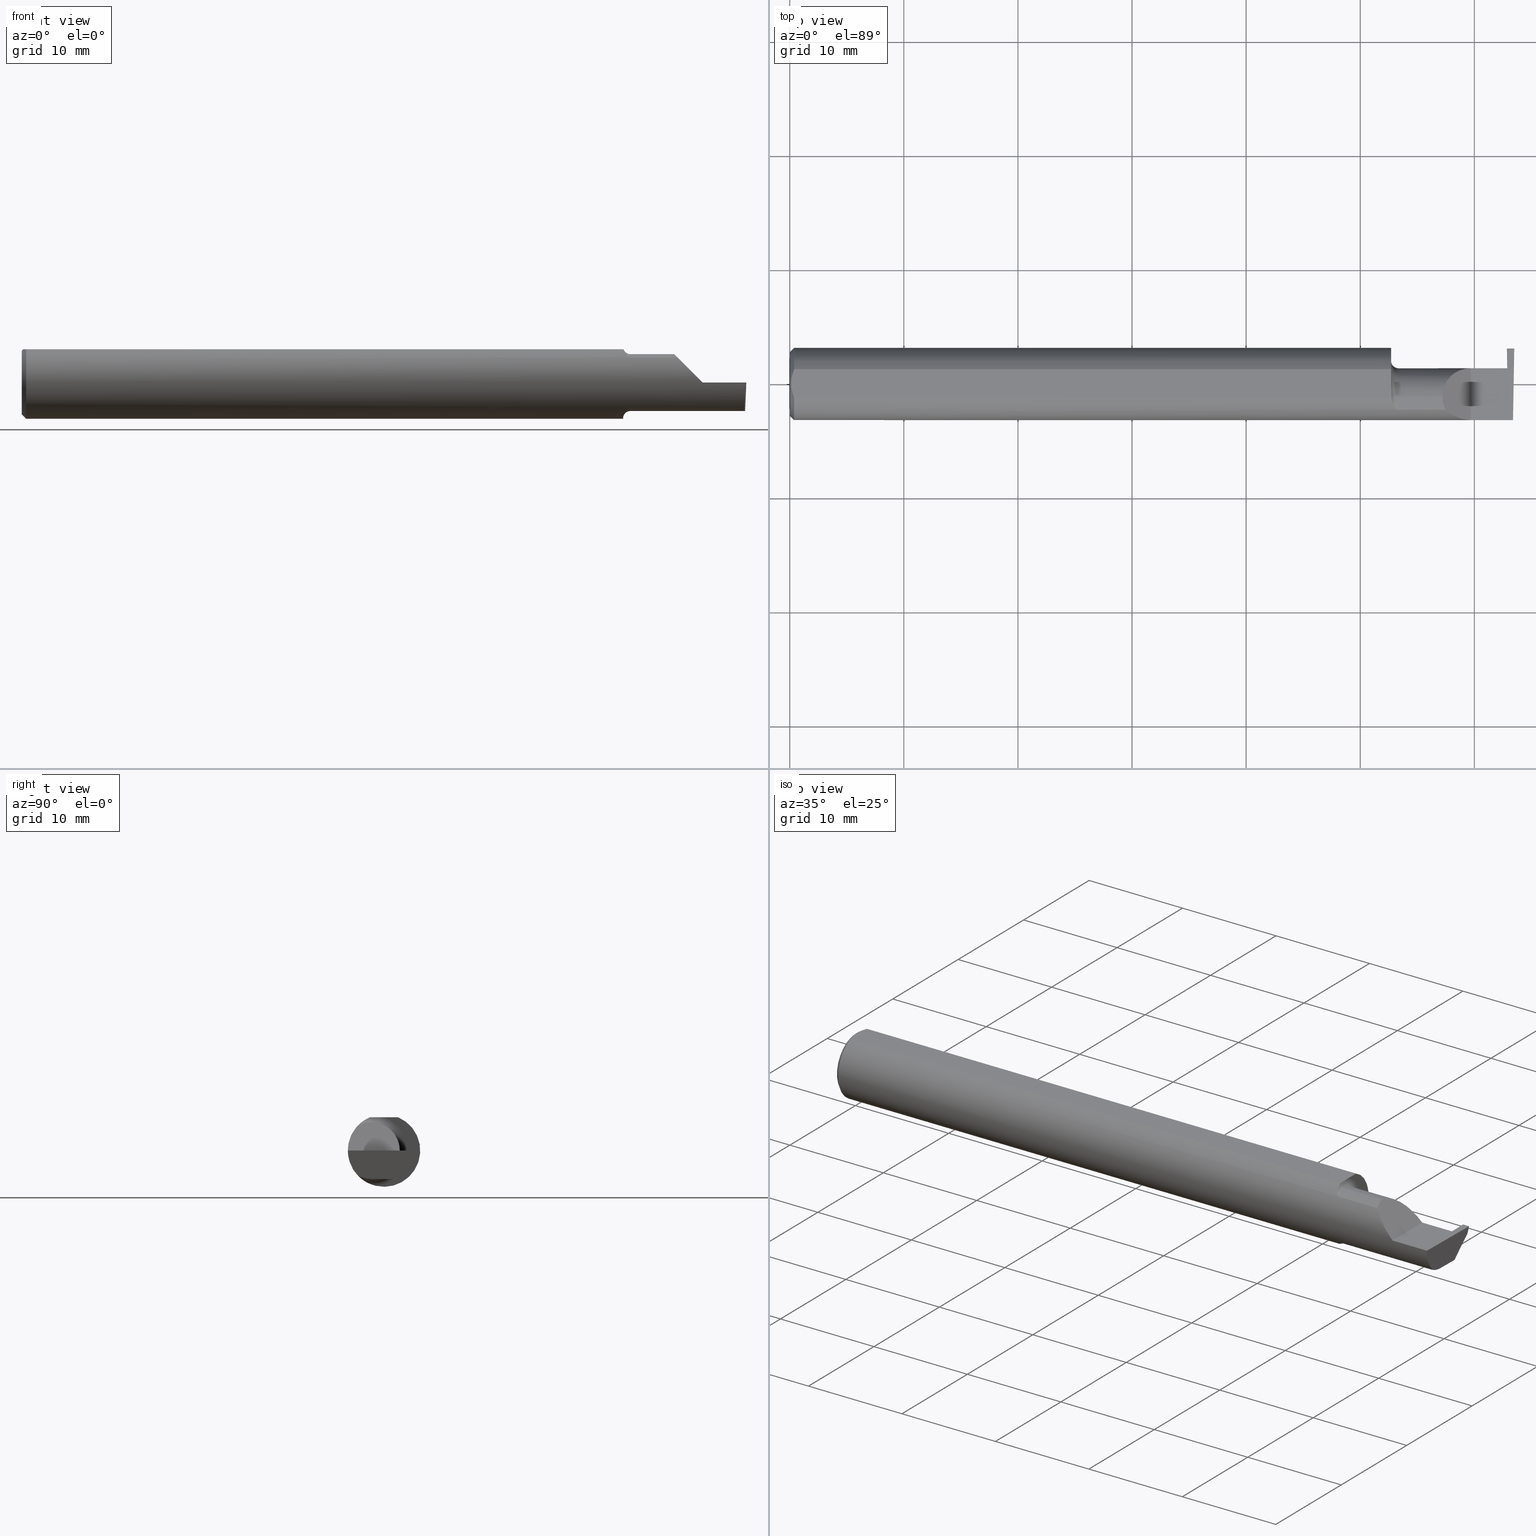
[diagram: canonical four-view strip — front | top / right | iso, engineering-drawing reading convention]
A machine part, canonical four-view strip (front | top / right | iso — engineering-drawing reading convention). The complete STEP part file that produces these views, byte-faithful:
ISO-10303-21;
HEADER;
FILE_DESCRIPTION (( 'STEP AP203' ),
    '1' );
FILE_NAME ('220803-GT025Q-6.STEP',
    '2024-07-08T23:05:28',
    ( '' ),
    ( '' ),
    'SwSTEP 2.0',
    'SolidWorks 2024',
    '' );
FILE_SCHEMA (( 'CONFIG_CONTROL_DESIGN' ));
ENDSEC;

DATA;
#1 = FACE_OUTER_BOUND ( 'NONE', #320, .T. ) ;
#2 = ORIENTED_EDGE ( 'NONE', *, *, #262, .F. ) ;
#3 = CARTESIAN_POINT ( 'NONE',  ( 2.500000000000000000, 0.05414999999999998981, -4.018029980387586904E-33 ) ) ;
#4 = CARTESIAN_POINT ( 'NONE',  ( 2.075000000000000622, -0.02715330672748003313, -0.1218614805168695830 ) ) ;
#5 = AXIS2_PLACEMENT_3D ( 'NONE', #726, #170, #549 ) ;
#6 = EDGE_LOOP ( 'NONE', ( #246, #774, #648, #378, #550 ) ) ;
#7 = DIRECTION ( 'NONE',  ( -1.000000000000000000, -0.000000000000000000, -0.000000000000000000 ) ) ;
#8 = DIRECTION ( 'NONE',  ( -0.01744642479411243410, -0.9998477995484630343, 2.816882764651548725E-16 ) ) ;
#9 = EDGE_CURVE ( 'NONE', #714, #211, #152, .T. ) ;
#10 = EDGE_CURVE ( 'NONE', #433, #730, #429, .T. ) ;
#11 = ORIENTED_EDGE ( 'NONE', *, *, #628, .T. ) ;
#12 = CARTESIAN_POINT ( 'NONE',  ( 2.075000000000000178, -0.04385000000000001397, 0.09800000000000000377 ) ) ;
#13 = DIRECTION ( 'NONE',  ( -1.291704402216665185E-16, -0.9999998142845093474, -0.0006094513490878759052 ) ) ;
#14 = CC_DESIGN_APPROVAL ( #25, ( #137 ) ) ;
#15 = DIRECTION ( 'NONE',  ( -1.000000000000000000, -0.000000000000000000, -0.000000000000000000 ) ) ;
#16 = AXIS2_PLACEMENT_3D ( 'NONE', #359, #484, #613 ) ;
#17 = DIRECTION ( 'NONE',  ( 0.000000000000000000, 0.000000000000000000, 1.000000000000000000 ) ) ;
#18 = CC_DESIGN_PERSON_AND_ORGANIZATION_ASSIGNMENT ( #344, #580, ( #171 ) ) ;
#19 = DIRECTION ( 'NONE',  ( 0.000000000000000000, -0.7071067811865462405, 0.7071067811865487940 ) ) ;
#20 = EDGE_LOOP ( 'NONE', ( #371, #476, #367, #51 ) ) ;
#21 = CARTESIAN_POINT ( 'NONE',  ( 2.075000000000000178, 0.05414999999999998981, 5.204748896376247001E-17 ) ) ;
#22 = ORIENTED_EDGE ( 'NONE', *, *, #275, .F. ) ;
#23 = CARTESIAN_POINT ( 'NONE',  ( 2.494033449660866708, -0.09015216647662482874, -0.08637192471845768493 ) ) ;
#24 = CARTESIAN_POINT ( 'NONE',  ( 2.100000000000000089, -0.09015216647662478711, -0.08637192471845771269 ) ) ;
#25 = APPROVAL ( #630, 'UNSPECIFIED' ) ;
#26 = AXIS2_PLACEMENT_3D ( 'NONE', #444, #19, #739 ) ;
#27 = DIRECTION ( 'NONE',  ( -0.03699114979479239257, 0.7066228325057374304, 0.7066228325057348769 ) ) ;
#28 = CARTESIAN_POINT ( 'NONE',  ( 2.075000000000000178, 0.1541499999999999815, 0.000000000000000000 ) ) ;
#29 = EDGE_CURVE ( 'NONE', #586, #77, #89, .T. ) ;
#30 = APPROVAL_DATE_TIME ( #459, #96 ) ;
#31 = CARTESIAN_POINT ( 'NONE',  ( 2.479353376795600639, -0.04385000000000004172, -0.09799999999999998990 ) ) ;
#32 = DIRECTION ( 'NONE',  ( 1.000000000000000000, 0.000000000000000000, 0.000000000000000000 ) ) ;
#33 = ORIENTED_EDGE ( 'NONE', *, *, #517, .F. ) ;
#34 = CARTESIAN_POINT ( 'NONE',  ( 2.075000000000000178, -0.1248500000000000165, 0.1148500000000000076 ) ) ;
#35 = B_SPLINE_CURVE_WITH_KNOTS ( 'NONE', 3,
 ( #24, #43, #519, #162, #346, #220, #527, #355, #583, #703, #158, #708 ),
 .UNSPECIFIED., .F., .F.,
 ( 4, 2, 2, 2, 2, 4 ),
 ( 1.963988863383734834E-07, 0.0002052720857047376818, 0.0004103477725231370198, 0.0008204991461599461583, 0.001230650519796755134, 0.001640801893433564435 ),
 .UNSPECIFIED. ) ;
#36 = CARTESIAN_POINT ( 'NONE',  ( 2.100000000000000089, -0.04385000000000001397, 0.000000000000000000 ) ) ;
#37 = EDGE_LOOP ( 'NONE', ( #493, #629, #145, #405 ) ) ;
#38 = EDGE_CURVE ( 'NONE', #586, #433, #462, .T. ) ;
#39 = CARTESIAN_POINT ( 'NONE',  ( 2.100000000000000089, -0.04385000000000001397, 0.09800000000000000377 ) ) ;
#40 = AXIS2_PLACEMENT_3D ( 'NONE', #183, #105, #539 ) ;
#41 = AXIS2_PLACEMENT_3D ( 'NONE', #699, #223, #530 ) ;
#42 = EDGE_CURVE ( 'NONE', #288, #68, #99, .T. ) ;
#43 = CARTESIAN_POINT ( 'NONE',  ( 2.097259638933032022, -0.09015216647662444016, -0.08637192471845808739 ) ) ;
#44 = ORIENTED_EDGE ( 'NONE', *, *, #670, .F. ) ;
#45 = CARTESIAN_POINT ( 'NONE',  ( 0.005932194444709711773, -0.01671525318617311101, 0.1148500000000000215 ) ) ;
#46 = B_SPLINE_CURVE_WITH_KNOTS ( 'NONE', 3,
 ( #241, #482, #45, #164, #725, #538 ),
 .UNSPECIFIED., .F., .F.,
 ( 4, 2, 4 ),
 ( 0.003658435455108828907, 0.004289327297787135992, 0.004920219140465443078 ),
 .UNSPECIFIED. ) ;
#47 = CARTESIAN_POINT ( 'NONE',  ( 2.076365755776839350, -0.04470142088163401445, 0.1148500000000000076 ) ) ;
#48 = VERTEX_POINT ( 'NONE', #287 ) ;
#49 = DIRECTION ( 'NONE',  ( -1.000000000000000000, -0.000000000000000000, -0.000000000000000000 ) ) ;
#50 = DESIGN_CONTEXT ( 'detailed design', #234, 'design' ) ;
#51 = ORIENTED_EDGE ( 'NONE', *, *, #786, .F. ) ;
#52 = CARTESIAN_POINT ( 'NONE',  ( 2.252000000000000668, -0.06008937020638503712, 0.09799999999999998990 ) ) ;
#53 = CIRCLE ( 'NONE', #506, 0.02499999999999980016 ) ;
#54 = LINE ( 'NONE', #490, #782 ) ;
#55 = AXIS2_PLACEMENT_3D ( 'NONE', #293, #676, #503 ) ;
#56 = ORIENTED_EDGE ( 'NONE', *, *, #601, .F. ) ;
#57 = CYLINDRICAL_SURFACE ( 'NONE', #87, 0.09800000000000000377 ) ;
#58 = DIRECTION ( 'NONE',  ( -1.000000000000000000, -0.000000000000000000, -0.000000000000000000 ) ) ;
#59 = ORIENTED_EDGE ( 'NONE', *, *, #301, .F. ) ;
#60 = EDGE_CURVE ( 'NONE', #81, #558, #585, .T. ) ;
#61 = DIRECTION ( 'NONE',  ( -0.000000000000000000, 1.000000000000000000, -0.000000000000000000 ) ) ;
#62 = ORIENTED_EDGE ( 'NONE', *, *, #557, .T. ) ;
#63 = AXIS2_PLACEMENT_3D ( 'NONE', #318, #7, #565 ) ;
#64 = DIRECTION ( 'NONE',  ( -1.000000000000000000, 1.290958279323718807E-16, 1.224646799147352221E-16 ) ) ;
#65 = CARTESIAN_POINT ( 'NONE',  ( 2.076326891871145719, -0.04895916665872582924, 0.1148500000000000076 ) ) ;
#66 = ADVANCED_FACE ( 'NONE', ( #336 ), #589, .T. ) ;
#67 = VECTOR ( 'NONE', #555, 39.37007874015748143 ) ;
#68 = VERTEX_POINT ( 'NONE', #578 ) ;
#69 = DIRECTION ( 'NONE',  ( 0.000000000000000000, 0.000000000000000000, 1.000000000000000000 ) ) ;
#70 = DIRECTION ( 'NONE',  ( -0.03699114979479620896, 0.7066228325057373194, 0.7066228325057347659 ) ) ;
#71 = FACE_OUTER_BOUND ( 'NONE', #125, .T. ) ;
#72 = B_SPLINE_CURVE_WITH_KNOTS ( 'NONE', 3,
 ( #278, #591, #765, #636, #751, #577 ),
 .UNSPECIFIED., .F., .F.,
 ( 4, 2, 4 ),
 ( 0.009485158816280120364, 0.01004274199597734486, 0.01060032517567456936 ),
 .UNSPECIFIED. ) ;
#73 = DIRECTION ( 'NONE',  ( 0.000000000000000000, 0.000000000000000000, 1.000000000000000000 ) ) ;
#74 = ORIENTED_EDGE ( 'NONE', *, *, #249, .F. ) ;
#75 = DIRECTION ( 'NONE',  ( -1.000000000000000000, -0.000000000000000000, -0.000000000000000000 ) ) ;
#76 = ORIENTED_EDGE ( 'NONE', *, *, #270, .F. ) ;
#77 = VERTEX_POINT ( 'NONE', #291 ) ;
#78 = PERSON_AND_ORGANIZATION ( #696, #767 ) ;
#79 = DIRECTION ( 'NONE',  ( 0.000000000000000000, 0.000000000000000000, 1.000000000000000000 ) ) ;
#80 = CARTESIAN_POINT ( 'NONE',  ( 2.479357246079640476, 0.07735389098887382464, -0.09800000000000001765 ) ) ;
#81 = VERTEX_POINT ( 'NONE', #340 ) ;
#82 = DATE_AND_TIME ( #208, #616 ) ;
#83 = EDGE_CURVE ( 'NONE', #697, #521, #128, .T. ) ;
#84 = CARTESIAN_POINT ( 'NONE',  ( 2.494256244271086054, -0.1126860773865890342, -0.06285177167860771241 ) ) ;
#85 = VECTOR ( 'NONE', #350, 39.37007874015747433 ) ;
#86 = COORDINATED_UNIVERSAL_TIME_OFFSET ( 8, 0, .BEHIND. ) ;
#87 = AXIS2_PLACEMENT_3D ( 'NONE', #312, #181, #430 ) ;
#88 = CARTESIAN_POINT ( 'NONE',  ( 2.494536841675280225, -0.04385000000000003478, -0.09799999999999998990 ) ) ;
#89 = LINE ( 'NONE', #80, #682 ) ;
#90 = ORIENTED_EDGE ( 'NONE', *, *, #147, .T. ) ;
#91 = PERSON_AND_ORGANIZATION ( #696, #767 ) ;
#92 = DIRECTION ( 'NONE',  ( 0.000000000000000000, 0.000000000000000000, 1.000000000000000000 ) ) ;
#93 = CARTESIAN_POINT ( 'NONE',  ( 2.494380489674781209, -0.1999019447116721915, 6.881915332554697616E-19 ) ) ;
#94 = EDGE_CURVE ( 'NONE', #730, #425, #35, .T. ) ;
#95 = ORIENTED_EDGE ( 'NONE', *, *, #612, .T. ) ;
#96 = APPROVAL ( #282, 'UNSPECIFIED' ) ;
#97 = CARTESIAN_POINT ( 'NONE',  ( 3.749399456654637998E-32, -0.1248500000000000026, 3.061616997868380676E-16 ) ) ;
#98 = CARTESIAN_POINT ( 'NONE',  ( 2.076326891871145719, -0.04895916665872582924, 0.1148500000000000076 ) ) ;
#99 =( BOUNDED_CURVE ( )  B_SPLINE_CURVE ( 3, ( #456, #84, #412, #766 ),
 .UNSPECIFIED., .F., .T. ) 
 B_SPLINE_CURVE_WITH_KNOTS ( ( 4, 4 ),
 ( 0.2190942387645742062, 0.9826237902197102470 ),
 .UNSPECIFIED. ) 
 CURVE ( )  GEOMETRIC_REPRESENTATION_ITEM ( )  RATIONAL_B_SPLINE_CURVE ( ( 1.000000000000000000, 0.9520057322288819623, 0.9520057322288819623, 1.000000000000000000 ) ) 
 REPRESENTATION_ITEM ( '' )  );
#100 =( GEOMETRIC_REPRESENTATION_CONTEXT ( 3 ) GLOBAL_UNCERTAINTY_ASSIGNED_CONTEXT ( ( #605 ) ) GLOBAL_UNIT_ASSIGNED_CONTEXT ( ( #741, #387, #264 ) ) REPRESENTATION_CONTEXT ( 'NONE', 'WORKASPACE' ) );
#101 = VERTEX_POINT ( 'NONE', #466 ) ;
#102 = CARTESIAN_POINT ( 'NONE',  ( 0.01499999999999987454, 0.04895916665957496944, 0.1148500000000000076 ) ) ;
#103 = VECTOR ( 'NONE', #783, 39.37007874015748143 ) ;
#104 = DIMENSIONAL_EXPONENTS ( 1.000000000000000000, 0.000000000000000000, 0.000000000000000000, 0.000000000000000000, 0.000000000000000000, 0.000000000000000000, 0.000000000000000000 ) ;
#105 = DIRECTION ( 'NONE',  ( -1.000000000000000000, -0.000000000000000000, -0.000000000000000000 ) ) ;
#106 = ORIENTED_EDGE ( 'NONE', *, *, #497, .F. ) ;
#107 = DIRECTION ( 'NONE',  ( 0.000000000000000000, 0.000000000000000000, -1.000000000000000000 ) ) ;
#108 = CARTESIAN_POINT ( 'NONE',  ( 2.075000000000000178, -0.04385000000000001397, 0.000000000000000000 ) ) ;
#109 = ORIENTED_EDGE ( 'NONE', *, *, #658, .T. ) ;
#110 = CARTESIAN_POINT ( 'NONE',  ( 2.399999999999999911, 0.1138861372810479888, -0.02400000000000000050 ) ) ;
#111 = VERTEX_POINT ( 'NONE', #647 ) ;
#112 = CARTESIAN_POINT ( 'NONE',  ( 0.01499999999999999944, 0.000000000000000000, 0.000000000000000000 ) ) ;
#113 = VECTOR ( 'NONE', #27, 39.37007874015748143 ) ;
#114 = CARTESIAN_POINT ( 'NONE',  ( 2.076326891871145719, -0.04895916665872582924, 0.1148500000000000076 ) ) ;
#115 = VECTOR ( 'NONE', #526, 39.37007874015748143 ) ;
#116 = EDGE_LOOP ( 'NONE', ( #59, #437, #193, #618, #221 ) ) ;
#117 = EDGE_CURVE ( 'NONE', #639, #211, #403, .T. ) ;
#118 = CARTESIAN_POINT ( 'NONE',  ( 0.000000000000000000, 0.04895916665957456698, 0.1148500000000000076 ) ) ;
#119 = CYLINDRICAL_SURFACE ( 'NONE', #559, 0.09800000000000000377 ) ;
#120 =( BOUNDED_CURVE ( )  B_SPLINE_CURVE ( 3, ( #23, #712, #756, #88 ),
 .UNSPECIFIED., .F., .F. ) 
 B_SPLINE_CURVE_WITH_KNOTS ( ( 4, 4 ),
 ( 0.09562308769838283318, 0.5877155292608426951 ),
 .UNSPECIFIED. ) 
 CURVE ( )  GEOMETRIC_REPRESENTATION_ITEM ( )  RATIONAL_B_SPLINE_CURVE ( ( 1.000000000000000000, 0.9799220177372778284, 0.9799220177372778284, 1.000000000000000000 ) ) 
 REPRESENTATION_ITEM ( '' )  );
#121 = ORIENTED_EDGE ( 'NONE', *, *, #29, .T. ) ;
#122 = EDGE_CURVE ( 'NONE', #271, #337, #771, .T. ) ;
#123 = CARTESIAN_POINT ( 'NONE',  ( 2.499227245409318066, 0.1138861372810480027, -0.02399999999999999356 ) ) ;
#124 = DIRECTION ( 'NONE',  ( 0.02617296143184117893, -0.0004568507411563390110, 0.9996573249755575929 ) ) ;
#125 = EDGE_LOOP ( 'NONE', ( #163, #351, #410, #121 ) ) ;
#126 = DIRECTION ( 'NONE',  ( 0.000000000000000000, 0.0006094513490878757968, -0.9999998142845092364 ) ) ;
#127 = CARTESIAN_POINT ( 'NONE',  ( 2.100000000000000089, -0.09015216647662482874, 0.08637192471845768493 ) ) ;
#128 = CIRCLE ( 'NONE', #182, 0.02499999999999980016 ) ;
#129 = VECTOR ( 'NONE', #420, 39.37007874015748143 ) ;
#130 = EDGE_LOOP ( 'NONE', ( #724, #421, #537, #749, #135, #11, #185 ) ) ;
#131 = CARTESIAN_POINT ( 'NONE',  ( 2.075242610568498236, -0.03840785182185595115, -0.1189375631818110762 ) ) ;
#132 = ADVANCED_FACE ( 'NONE', ( #637 ), #475, .F. ) ;
#133 =( LENGTH_UNIT ( ) NAMED_UNIT ( * ) SI_UNIT ( $, .METRE. ) );
#134 = CARTESIAN_POINT ( 'NONE',  ( 2.075000000000000178, -0.03284222813693379872, -0.1205938689030582739 ) ) ;
#135 = ORIENTED_EDGE ( 'NONE', *, *, #670, .T. ) ;
#136 = DIRECTION ( 'NONE',  ( 0.000000000000000000, 0.000000000000000000, 1.000000000000000000 ) ) ;
#137 = PRODUCT_DEFINITION_FORMATION_WITH_SPECIFIED_SOURCE ( 'ANY', '', #171, .NOT_KNOWN. ) ;
#138 = DIRECTION ( 'NONE',  ( 0.9992391710281357531, 0.01740988840156783291, 0.03489949668475364475 ) ) ;
#139 = VECTOR ( 'NONE', #165, 39.37007874015748143 ) ;
#140 = VERTEX_POINT ( 'NONE', #98 ) ;
#141 = SECURITY_CLASSIFICATION_LEVEL ( 'unclassified' ) ;
#142 = LINE ( 'NONE', #707, #113 ) ;
#143 = ORIENTED_EDGE ( 'NONE', *, *, #545, .F. ) ;
#144 = ADVANCED_FACE ( 'NONE', ( #592 ), #536, .F. ) ;
#145 = ORIENTED_EDGE ( 'NONE', *, *, #147, .F. ) ;
#146 = COORDINATED_UNIVERSAL_TIME_OFFSET ( 8, 0, .BEHIND. ) ;
#147 = EDGE_CURVE ( 'NONE', #727, #691, #716, .T. ) ;
#148 = FACE_OUTER_BOUND ( 'NONE', #485, .T. ) ;
#149 = CARTESIAN_POINT ( 'NONE',  ( 2.480918903665495279, 0.05424136207626866629, -0.1499086997478103755 ) ) ;
#150 = DIRECTION ( 'NONE',  ( -1.000000000000000000, -0.000000000000000000, -0.000000000000000000 ) ) ;
#151 = LOCAL_TIME ( 16, 5, 28.00000000000000000, #86 ) ;
#152 = LINE ( 'NONE', #524, #479 ) ;
#153 = AXIS2_PLACEMENT_3D ( 'NONE', #713, #650, #700 ) ;
#154 = ORIENTED_EDGE ( 'NONE', *, *, #9, .F. ) ;
#155 = AXIS2_PLACEMENT_3D ( 'NONE', #548, #535, #415 ) ;
#156 = CARTESIAN_POINT ( 'NONE',  ( 2.252000000000000668, -0.04385000000000001397, 0.09800000000000000377 ) ) ;
#157 = EDGE_CURVE ( 'NONE', #77, #302, #487, .T. ) ;
#158 = CARTESIAN_POINT ( 'NONE',  ( 2.076227715916085348, -0.04883822427082836620, -0.1150249279297937410 ) ) ;
#159 = ORIENTED_EDGE ( 'NONE', *, *, #718, .F. ) ;
#160 = COORDINATED_UNIVERSAL_TIME_OFFSET ( 8, 0, .BEHIND. ) ;
#161 = LINE ( 'NONE', #219, #468 ) ;
#162 = CARTESIAN_POINT ( 'NONE',  ( 2.090875432832430825, -0.08647060418110404101, -0.09007670266896510014 ) ) ;
#163 = ORIENTED_EDGE ( 'NONE', *, *, #157, .T. ) ;
#164 = CARTESIAN_POINT ( 'NONE',  ( 0.009415874254822409126, -0.03313958207962818675, 0.1148500000000000076 ) ) ;
#165 = DIRECTION ( 'NONE',  ( -0.03042981077198511977, -0.3254173858243485373, -0.9450807116958996890 ) ) ;
#166 = VERTEX_POINT ( 'NONE', #254 ) ;
#167 = DIRECTION ( 'NONE',  ( -0.03084274406794365597, -0.7067703747110382073, -0.7067703747110356538 ) ) ;
#168 = TOROIDAL_SURFACE ( 'NONE', #381, 0.1230000000000000121, 0.02499999999999980016 ) ;
#169 = APPROVAL ( #454, 'UNSPECIFIED' ) ;
#170 = DIRECTION ( 'NONE',  ( 1.000000000000000000, 0.000000000000000000, 0.000000000000000000 ) ) ;
#171 = PRODUCT ( '220803-GT025Q-6', '220803-GT025Q-6', '', ( #215 ) ) ;
#172 = EDGE_LOOP ( 'NONE', ( #575, #374, #154, #231, #571, #705, #74 ) ) ;
#173 = ADVANCED_FACE ( 'NONE', ( #423 ), #119, .T. ) ;
#174 = CARTESIAN_POINT ( 'NONE',  ( 0.000000000000000000, 0.000000000000000000, 0.000000000000000000 ) ) ;
#175 = DIRECTION ( 'NONE',  ( 0.05230943362268287988, 0.0006086169641122237328, -0.9986307389317961025 ) ) ;
#176 = VERTEX_POINT ( 'NONE', #432 ) ;
#177 = DIRECTION ( 'NONE',  ( 1.000000000000000000, 0.000000000000000000, 0.000000000000000000 ) ) ;
#178 = CARTESIAN_POINT ( 'NONE',  ( 0.000000000000000000, 1.437123018799419134E-17, 0.1098500000000000032 ) ) ;
#179 =( BOUNDED_CURVE ( )  B_SPLINE_CURVE ( 3, ( #368, #657, #52, #607 ),
 .UNSPECIFIED., .F., .F. ) 
 B_SPLINE_CURVE_WITH_KNOTS ( ( 4, 4 ),
 ( 5.791092865617133434, 6.283185307179586232 ),
 .UNSPECIFIED. ) 
 CURVE ( )  GEOMETRIC_REPRESENTATION_ITEM ( )  RATIONAL_B_SPLINE_CURVE ( ( 1.000000000000000000, 0.9799220177372784946, 0.9799220177372784946, 1.000000000000000000 ) ) 
 REPRESENTATION_ITEM ( '' )  );
#180 = ORIENTED_EDGE ( 'NONE', *, *, #329, .F. ) ;
#181 = DIRECTION ( 'NONE',  ( -1.000000000000000000, -0.000000000000000000, -0.000000000000000000 ) ) ;
#182 = AXIS2_PLACEMENT_3D ( 'NONE', #284, #762, #399 ) ;
#183 = CARTESIAN_POINT ( 'NONE',  ( 2.075000000000000622, -0.04385000000000001397, 0.000000000000000000 ) ) ;
#184 = ADVANCED_FACE ( 'NONE', ( #1 ), #641, .T. ) ;
#185 = ORIENTED_EDGE ( 'NONE', *, *, #631, .T. ) ;
#186 =( BOUNDED_CURVE ( )  B_SPLINE_CURVE ( 3, ( #426, #474, #247, #308 ),
 .UNSPECIFIED., .F., .F. ) 
 B_SPLINE_CURVE_WITH_KNOTS ( ( 4, 4 ),
 ( 4.463962699426424763, 4.711356644242684411 ),
 .UNSPECIFIED. ) 
 CURVE ( )  GEOMETRIC_REPRESENTATION_ITEM ( )  RATIONAL_B_SPLINE_CURVE ( ( 1.000000000000000000, 0.9949061863229000657, 0.9949061863229000657, 1.000000000000000000 ) ) 
 REPRESENTATION_ITEM ( '' )  );
#187 = CARTESIAN_POINT ( 'NONE',  ( 2.475482208140546536, 0.1138861372810479888, -0.02400000000000000397 ) ) ;
#188 = PLANE ( 'NONE',  #568 ) ;
#189 = VERTEX_POINT ( 'NONE', #178 ) ;
#190 = CARTESIAN_POINT ( 'NONE',  ( 2.480118901204498627, -0.2003463912558332838, 2.434732400344322887E-18 ) ) ;
#191 = ADVANCED_BREP_SHAPE_REPRESENTATION ( '220803-GT025Q-6', ( #277, #491 ), #100 ) ;
#192 = LINE ( 'NONE', #382, #494 ) ;
#193 = ORIENTED_EDGE ( 'NONE', *, *, #380, .T. ) ;
#194 = LOCAL_TIME ( 16, 5, 28.00000000000000000, #160 ) ;
#195 = DIRECTION ( 'NONE',  ( -1.000000000000000000, -0.000000000000000000, -0.000000000000000000 ) ) ;
#196 = PRODUCT_RELATED_PRODUCT_CATEGORY ( 'detail', '', ( #171 ) ) ;
#197 = CARTESIAN_POINT ( 'NONE',  ( 2.086053217927678283, -0.08094812012684959868, 0.09514231764822832227 ) ) ;
#198 = AXIS2_PLACEMENT_3D ( 'NONE', #295, #776, #233 ) ;
#199 = VECTOR ( 'NONE', #64, 39.37007874015748143 ) ;
#200 = FACE_OUTER_BOUND ( 'NONE', #276, .T. ) ;
#201 = CARTESIAN_POINT ( 'NONE',  ( 2.095195245915135285, -0.08928014009840806731, 0.08728826463238047173 ) ) ;
#202 = B_SPLINE_CURVE_WITH_KNOTS ( 'NONE', 3,
 ( #114, #779, #604, #248, #47, #370 ),
 .UNSPECIFIED., .F., .F.,
 ( 4, 2, 4 ),
 ( 0.009355882855483714511, 0.009420520835881917437, 0.009485158816280120364 ),
 .UNSPECIFIED. ) ;
#203 = EDGE_LOOP ( 'NONE', ( #360, #33, #576, #594, #737 ) ) ;
#204 = CARTESIAN_POINT ( 'NONE',  ( 2.263628075281542529, -0.09015216647662421812, 0.08637192471845822617 ) ) ;
#205 = DIRECTION ( 'NONE',  ( 0.02618093032612054880, 0.000000000000000000, 0.9996572206948033390 ) ) ;
#206 = EDGE_CURVE ( 'NONE', #314, #166, #693, .T. ) ;
#207 = ORIENTED_EDGE ( 'NONE', *, *, #597, .F. ) ;
#208 = CALENDAR_DATE ( 2024, 8, 7 ) ;
#209 = SECURITY_CLASSIFICATION ( '', '', #141 ) ;
#210 = CARTESIAN_POINT ( 'NONE',  ( 2.100000000000000089, -0.04385000000000000009, -0.09800000000000000377 ) ) ;
#211 = VERTEX_POINT ( 'NONE', #313 ) ;
#212 = AXIS2_PLACEMENT_3D ( 'NONE', #532, #757, #230 ) ;
#213 = VECTOR ( 'NONE', #397, 39.37007874015748143 ) ;
#214 = ADVANCED_FACE ( 'NONE', ( #427 ), #653, .F. ) ;
#215 = MECHANICAL_CONTEXT ( 'NONE', #442, 'mechanical' ) ;
#216 = LINE ( 'NONE', #290, #669 ) ;
#217 = CARTESIAN_POINT ( 'NONE',  ( 2.075000000000000178, -0.04385000000000000703, -0.09800000000000000377 ) ) ;
#218 = ORIENTED_EDGE ( 'NONE', *, *, #301, .T. ) ;
#219 = CARTESIAN_POINT ( 'NONE',  ( 2.287250000000000227, -0.09015216647662482874, -0.08637192471845768493 ) ) ;
#220 = CARTESIAN_POINT ( 'NONE',  ( 2.085226514481665738, -0.07966992494485837517, -0.09623747760188229583 ) ) ;
#221 = ORIENTED_EDGE ( 'NONE', *, *, #631, .F. ) ;
#222 = PERSON_AND_ORGANIZATION ( #696, #767 ) ;
#223 = DIRECTION ( 'NONE',  ( -0.7071067811865492381, 0.000000000000000000, -0.7071067811865459074 ) ) ;
#224 = DIRECTION ( 'NONE',  ( -1.000000000000000000, -0.000000000000000000, -0.000000000000000000 ) ) ;
#225 = VECTOR ( 'NONE', #617, 39.37007874015748143 ) ;
#226 = EDGE_LOOP ( 'NONE', ( #207, #159, #634, #663 ) ) ;
#227 = DATE_AND_TIME ( #348, #505 ) ;
#228 = AXIS2_PLACEMENT_3D ( 'NONE', #112, #177, #107 ) ;
#229 = CYLINDRICAL_SURFACE ( 'NONE', #240, 0.1248500000000000026 ) ;
#230 = DIRECTION ( 'NONE',  ( 0.000000000000000000, 0.000000000000000000, 1.000000000000000000 ) ) ;
#231 = ORIENTED_EDGE ( 'NONE', *, *, #786, .T. ) ;
#232 = CARTESIAN_POINT ( 'NONE',  ( 2.479354867654528061, 0.002850604310161268268, -0.09800000000000001765 ) ) ;
#233 = DIRECTION ( 'NONE',  ( -1.000000000000000000, 0.000000000000000000, 1.224646799147352221E-16 ) ) ;
#234 = APPLICATION_CONTEXT ( 'configuration controlled 3d designs of mechanical parts and assemblies' ) ;
#235 = EDGE_LOOP ( 'NONE', ( #645, #106, #463 ) ) ;
#236 = CARTESIAN_POINT ( 'NONE',  ( 2.495690077103728921, -0.1248499999950964945, 8.800986592364463999E-18 ) ) ;
#237 = CARTESIAN_POINT ( 'NONE',  ( 2.495997960279815242, 0.03988613728104774270, -0.09799999999999996214 ) ) ;
#238 = VERTEX_POINT ( 'NONE', #310 ) ;
#239 = EDGE_CURVE ( 'NONE', #211, #691, #362, .T. ) ;
#240 = AXIS2_PLACEMENT_3D ( 'NONE', #411, #694, #92 ) ;
#241 = CARTESIAN_POINT ( 'NONE',  ( 0.004999999999999990563, 1.454187663965904829E-17, 0.1148500000000000076 ) ) ;
#242 = CARTESIAN_POINT ( 'NONE',  ( 2.475482208140546536, 0.05416464901751172345, -0.02403639734835130368 ) ) ;
#243 = ORIENTED_EDGE ( 'NONE', *, *, #42, .F. ) ;
#244 = CARTESIAN_POINT ( 'NONE',  ( 2.479353376795600639, -0.04385000000000004172, -0.09799999999999998990 ) ) ;
#245 = CARTESIAN_POINT ( 'NONE',  ( 2.499907402661638134, 0.1211597610527450908, -0.002875862722115925512 ) ) ;
#246 = ORIENTED_EDGE ( 'NONE', *, *, #38, .F. ) ;
#247 = CARTESIAN_POINT ( 'NONE',  ( 2.474831655309489342, 0.05414656493488107653, -0.008143655253979704967 ) ) ;
#248 = CARTESIAN_POINT ( 'NONE',  ( 2.076362484150212850, -0.04555293709188857482, 0.1148500000000000076 ) ) ;
#249 = EDGE_CURVE ( 'NONE', #681, #176, #596, .T. ) ;
#250 = CC_DESIGN_SECURITY_CLASSIFICATION ( #209, ( #137 ) ) ;
#251 = ORIENTED_EDGE ( 'NONE', *, *, #311, .T. ) ;
#252 = CARTESIAN_POINT ( 'NONE',  ( 2.474499999999999922, 0.1221499999999999808, -3.306546357697866753E-19 ) ) ;
#253 = VECTOR ( 'NONE', #279, 39.37007874015748143 ) ;
#254 = CARTESIAN_POINT ( 'NONE',  ( 2.075000000000000178, 0.04895916665957496944, 0.1148500000000000076 ) ) ;
#255 = EDGE_LOOP ( 'NONE', ( #384, #2, #488, #780 ) ) ;
#256 = CARTESIAN_POINT ( 'NONE',  ( 2.480918903665495279, 0.05424136207626866629, -0.1499086997478103755 ) ) ;
#257 = CARTESIAN_POINT ( 'NONE',  ( 2.097502509400818838, -0.09015216647698107155, 0.08637192471808592675 ) ) ;
#258 = VERTEX_POINT ( 'NONE', #552 ) ;
#259 = PRODUCT_DEFINITION ( 'UNKNOWN', '', #137, #50 ) ;
#260 = LENGTH_MEASURE_WITH_UNIT ( LENGTH_MEASURE( 0.02539999999999999897 ), #133 );
#261 = CARTESIAN_POINT ( 'NONE',  ( 2.100000000000000089, -0.04385000000000001397, 0.000000000000000000 ) ) ;
#262 = EDGE_CURVE ( 'NONE', #140, #697, #202, .T. ) ;
#263 = APPROVAL_PERSON_ORGANIZATION ( #396, #25, #711 ) ;
#264 =( NAMED_UNIT ( * ) SI_UNIT ( $, .STERADIAN. ) SOLID_ANGLE_UNIT ( ) );
#265 = B_SPLINE_CURVE_WITH_KNOTS ( 'NONE', 3,
 ( #659, #131, #134, #266 ),
 .UNSPECIFIED., .F., .F.,
 ( 4, 4 ),
 ( 0.001640801893433564435, 0.002088276671954477758 ),
 .UNSPECIFIED. ) ;
#266 = CARTESIAN_POINT ( 'NONE',  ( 2.075000000000000622, -0.02715330672748003313, -0.1218614805168695830 ) ) ;
#267 = AXIS2_PLACEMENT_3D ( 'NONE', #28, #32, #772 ) ;
#268 = DIRECTION ( 'NONE',  ( -1.000000000000000000, -0.000000000000000000, -0.000000000000000000 ) ) ;
#269 = FACE_OUTER_BOUND ( 'NONE', #541, .T. ) ;
#270 = EDGE_CURVE ( 'NONE', #101, #285, #54, .T. ) ;
#271 = VERTEX_POINT ( 'NONE', #416 ) ;
#272 = APPROVAL_ROLE ( '' ) ;
#273 = DIRECTION ( 'NONE',  ( 1.000000000000000000, 0.000000000000000000, 0.000000000000000000 ) ) ;
#274 = ORIENTED_EDGE ( 'NONE', *, *, #626, .T. ) ;
#275 = EDGE_CURVE ( 'NONE', #481, #140, #305, .T. ) ;
#276 = EDGE_LOOP ( 'NONE', ( #553, #317, #609, #512, #763, #306, #752, #347 ) ) ;
#277 = MANIFOLD_SOLID_BREP ( 'Front Angle', #280 ) ;
#278 = CARTESIAN_POINT ( 'NONE',  ( 2.076365755776839794, -0.04385000000000001397, 0.1148500000000000076 ) ) ;
#279 = DIRECTION ( 'NONE',  ( -0.03489418134011375294, -0.0006090802009084598069, 0.9993908270190957621 ) ) ;
#280 = CLOSED_SHELL ( 'NONE', ( #720, #173, #742, #540, #184, #434, #587, #144, #520, #644, #132, #402, #66, #667, #330, #409, #579, #773, #375, #214, #457, #414 ) ) ;
#281 = ORIENTED_EDGE ( 'NONE', *, *, #206, .F. ) ;
#282 = APPROVAL_STATUS ( 'not_yet_approved' ) ;
#283 = DIRECTION ( 'NONE',  ( 0.9991632577875569909, -2.492636860404075832E-05, 0.04089967806758667418 ) ) ;
#284 = CARTESIAN_POINT ( 'NONE',  ( 2.100000000000000089, -0.04385000000000001397, 0.1230000000000000121 ) ) ;
#285 = VERTEX_POINT ( 'NONE', #242 ) ;
#286 = EDGE_CURVE ( 'NONE', #285, #81, #732, .T. ) ;
#287 = CARTESIAN_POINT ( 'NONE',  ( 2.075000000000000622, 0.0001781444078671173391, 0.1148500000000000076 ) ) ;
#288 = VERTEX_POINT ( 'NONE', #608 ) ;
#289 = APPLICATION_PROTOCOL_DEFINITION ( 'international standard', 'config_control_design', 1994, #234 ) ;
#290 = CARTESIAN_POINT ( 'NONE',  ( 2.475482208140546536, 0.05416464901751383981, -0.02403639734835130021 ) ) ;
#291 = CARTESIAN_POINT ( 'NONE',  ( 2.479356049968028497, 0.03988613728104813128, -0.09799999999999986500 ) ) ;
#292 = ORIENTED_EDGE ( 'NONE', *, *, #299, .F. ) ;
#293 = CARTESIAN_POINT ( 'NONE',  ( 2.100000000000000089, -0.04385000000000001397, 0.000000000000000000 ) ) ;
#294 =( BOUNDED_CURVE ( )  B_SPLINE_CURVE ( 3, ( #619, #385, #622, #204 ),
 .UNSPECIFIED., .F., .T. ) 
 B_SPLINE_CURVE_WITH_KNOTS ( ( 4, 4 ),
 ( 4.712388980384690562, 5.476375539154175520 ),
 .UNSPECIFIED. ) 
 CURVE ( )  GEOMETRIC_REPRESENTATION_ITEM ( )  RATIONAL_B_SPLINE_CURVE ( ( 1.000000000000000000, 0.9519489620492029847, 0.9519489620492029847, 1.000000000000000000 ) ) 
 REPRESENTATION_ITEM ( '' )  );
#295 = CARTESIAN_POINT ( 'NONE',  ( 2.500000000000000000, -0.2000000000000000111, 0.000000000000000000 ) ) ;
#296 = EDGE_CURVE ( 'NONE', #337, #481, #668, .T. ) ;
#297 = ORIENTED_EDGE ( 'NONE', *, *, #239, .F. ) ;
#298 = CARTESIAN_POINT ( 'NONE',  ( 2.499132853025170853, 0.1117231085775383936, -0.02616302870350959223 ) ) ;
#299 = EDGE_CURVE ( 'NONE', #48, #314, #356, .T. ) ;
#300 = CARTESIAN_POINT ( 'NONE',  ( 2.500000000000000000, 0.03988613728104772188, -0.09800000000000000377 ) ) ;
#301 = EDGE_CURVE ( 'NONE', #189, #740, #674, .T. ) ;
#302 = VERTEX_POINT ( 'NONE', #237 ) ;
#303 = DIRECTION ( 'NONE',  ( 1.000000000000000000, 0.000000000000000000, -0.000000000000000000 ) ) ;
#304 = B_SPLINE_CURVE_WITH_KNOTS ( 'NONE', 3,
 ( #102, #728, #489, #661, #595, #715 ),
 .UNSPECIFIED., .F., .F.,
 ( 4, 2, 4 ),
 ( 0.002396733445051246140, 0.003027584450080037307, 0.003658435455108828907 ),
 .UNSPECIFIED. ) ;
#305 = LINE ( 'NONE', #600, #129 ) ;
#306 = ORIENTED_EDGE ( 'NONE', *, *, #424, .T. ) ;
#307 = VECTOR ( 'NONE', #124, 39.37007874015748854 ) ;
#308 = CARTESIAN_POINT ( 'NONE',  ( 2.474499999999999922, 0.05414999123725582758, -4.144270477499261866E-05 ) ) ;
#309 = VECTOR ( 'NONE', #372, 39.37007874015748143 ) ;
#310 = CARTESIAN_POINT ( 'NONE',  ( 0.000000000000000000, 0.000000000000000000, -0.1098500000000000032 ) ) ;
#311 = EDGE_CURVE ( 'NONE', #425, #314, #265, .T. ) ;
#312 = CARTESIAN_POINT ( 'NONE',  ( 2.075000000000000178, -0.04385000000000001397, 0.000000000000000000 ) ) ;
#313 = CARTESIAN_POINT ( 'NONE',  ( 2.500000000000000000, 0.1221500000000000224, 1.614031285319217924E-16 ) ) ;
#314 = VERTEX_POINT ( 'NONE', #4 ) ;
#315 = DIRECTION ( 'NONE',  ( 1.000000000000000000, 0.000000000000000000, 0.000000000000000000 ) ) ;
#316 = CARTESIAN_POINT ( 'NONE',  ( 0.01499999999999999944, 1.528971528735470422E-17, 0.1248500000000000026 ) ) ;
#317 = ORIENTED_EDGE ( 'NONE', *, *, #38, .T. ) ;
#318 = CARTESIAN_POINT ( 'NONE',  ( 2.100000000000000089, -0.04385000000000001397, 0.000000000000000000 ) ) ;
#319 = CARTESIAN_POINT ( 'NONE',  ( 2.077489051389807440, -0.05793447593674516671, 0.1110239341513692690 ) ) ;
#320 = EDGE_LOOP ( 'NONE', ( #180, #218, #393, #400, #469 ) ) ;
#321 = FACE_OUTER_BOUND ( 'NONE', #719, .T. ) ;
#322 = CARTESIAN_POINT ( 'NONE',  ( 2.475378922426133776, 0.1158591509472974568, -0.02202698633375053949 ) ) ;
#323 = EDGE_CURVE ( 'NONE', #302, #788, #192, .T. ) ;
#324 = EDGE_CURVE ( 'NONE', #81, #727, #504, .T. ) ;
#325 =( BOUNDED_CURVE ( )  B_SPLINE_CURVE ( 3, ( #156, #349, #401, #407 ),
 .UNSPECIFIED., .F., .T. ) 
 B_SPLINE_CURVE_WITH_KNOTS ( ( 4, 4 ),
 ( 0.000000000000000000, 1.570796326794896558 ),
 .UNSPECIFIED. ) 
 CURVE ( )  GEOMETRIC_REPRESENTATION_ITEM ( )  RATIONAL_B_SPLINE_CURVE ( ( 1.000000000000000000, 0.8047378541243649375, 0.8047378541243649375, 1.000000000000000000 ) ) 
 REPRESENTATION_ITEM ( '' )  );
#326 = CARTESIAN_POINT ( 'NONE',  ( 2.500000000000000000, 0.07735323199453268683, -0.09800000000000001765 ) ) ;
#327 = FACE_OUTER_BOUND ( 'NONE', #621, .T. ) ;
#328 = VECTOR ( 'NONE', #335, 39.37007874015748143 ) ;
#329 = EDGE_CURVE ( 'NONE', #189, #238, #452, .T. ) ;
#330 = ADVANCED_FACE ( 'NONE', ( #71 ), #188, .F. ) ;
#331 = CARTESIAN_POINT ( 'NONE',  ( 2.500000000000000000, -0.04385000000000002091, -0.09799999999999998990 ) ) ;
#332 = ORIENTED_EDGE ( 'NONE', *, *, #471, .F. ) ;
#333 = ORIENTED_EDGE ( 'NONE', *, *, #286, .T. ) ;
#334 = DATE_TIME_ROLE ( 'classification_date' ) ;
#335 = DIRECTION ( 'NONE',  ( -0.03866673033866091513, 0.3253246823342271776, 0.9448114812114909444 ) ) ;
#336 = FACE_OUTER_BOUND ( 'NONE', #235, .T. ) ;
#337 = VERTEX_POINT ( 'NONE', #686 ) ;
#338 = PERSON_AND_ORGANIZATION ( #696, #767 ) ;
#339 = DIRECTION ( 'NONE',  ( -1.000000000000000000, -0.000000000000000000, -0.000000000000000000 ) ) ;
#340 = CARTESIAN_POINT ( 'NONE',  ( 2.478606678051653134, 0.05420100202805250983, -0.08368513525296515654 ) ) ;
#341 = AXIS2_PLACEMENT_3D ( 'NONE', #761, #283, #646 ) ;
#342 = CC_DESIGN_PERSON_AND_ORGANIZATION_ASSIGNMENT ( #513, #406, ( #259 ) ) ;
#343 = CONICAL_SURFACE ( 'NONE', #228, 0.1248500000000000026, 0.7853981633974480570 ) ;
#344 = PERSON_AND_ORGANIZATION ( #696, #767 ) ;
#345 = CARTESIAN_POINT ( 'NONE',  ( 2.475684773821554607, 0.05414999999999999675, 1.856292815590049169E-17 ) ) ;
#346 = CARTESIAN_POINT ( 'NONE',  ( 2.089311064734461265, -0.08485061678078631431, -0.09161469295857084527 ) ) ;
#347 = ORIENTED_EDGE ( 'NONE', *, *, #610, .F. ) ;
#348 = CALENDAR_DATE ( 2024, 8, 7 ) ;
#349 = CARTESIAN_POINT ( 'NONE',  ( 2.252000000000000668, 0.01355707088743670317, 0.09799999999999996214 ) ) ;
#350 = DIRECTION ( 'NONE',  ( 0.01744642479411244104, 0.9998477995484630343, -2.135106780035405654E-18 ) ) ;
#351 = ORIENTED_EDGE ( 'NONE', *, *, #323, .T. ) ;
#352 = CARTESIAN_POINT ( 'NONE',  ( 0.01499999999999999944, -0.04895916665957456698, 0.1148500000000000076 ) ) ;
#353 = EDGE_CURVE ( 'NONE', #788, #586, #448, .T. ) ;
#354 = AXIS2_PLACEMENT_3D ( 'NONE', #685, #268, #69 ) ;
#355 = CARTESIAN_POINT ( 'NONE',  ( 2.080064983703085346, -0.06736177101644112708, -0.1052426774175050789 ) ) ;
#356 = CIRCLE ( 'NONE', #40, 0.1230000000000000121 ) ;
#357 = ORIENTED_EDGE ( 'NONE', *, *, #383, .F. ) ;
#358 = FACE_OUTER_BOUND ( 'NONE', #130, .T. ) ;
#359 = CARTESIAN_POINT ( 'NONE',  ( 2.075000000000000178, 0.000000000000000000, 0.000000000000000000 ) ) ;
#360 = ORIENTED_EDGE ( 'NONE', *, *, #286, .F. ) ;
#361 = CARTESIAN_POINT ( 'NONE',  ( 2.252000000000000668, -0.04385000000000001397, 0.09800000000000000377 ) ) ;
#362 = LINE ( 'NONE', #245, #139 ) ;
#363 = ORIENTED_EDGE ( 'NONE', *, *, #329, .T. ) ;
#364 = PLANE ( 'NONE',  #570 ) ;
#365 = DIRECTION ( 'NONE',  ( 1.000000000000000000, -0.000000000000000000, -0.000000000000000000 ) ) ;
#366 = EDGE_CURVE ( 'NONE', #651, #521, #508, .T. ) ;
#367 = ORIENTED_EDGE ( 'NONE', *, *, #60, .T. ) ;
#368 = CARTESIAN_POINT ( 'NONE',  ( 2.263628075281542529, -0.09015216647662421812, 0.08637192471845822617 ) ) ;
#369 = VECTOR ( 'NONE', #789, 39.37007874015748143 ) ;
#370 = CARTESIAN_POINT ( 'NONE',  ( 2.076365755776839794, -0.04385000000000001397, 0.1148500000000000076 ) ) ;
#371 = ORIENTED_EDGE ( 'NONE', *, *, #492, .F. ) ;
#372 = DIRECTION ( 'NONE',  ( -1.000000000000000000, -0.000000000000000000, -0.000000000000000000 ) ) ;
#373 = DIRECTION ( 'NONE',  ( 0.000000000000000000, 0.000000000000000000, 1.000000000000000000 ) ) ;
#374 = ORIENTED_EDGE ( 'NONE', *, *, #117, .T. ) ;
#375 = ADVANCED_FACE ( 'NONE', ( #573 ), #677, .F. ) ;
#376 = FACE_OUTER_BOUND ( 'NONE', #255, .T. ) ;
#377 = APPROVAL_PERSON_ORGANIZATION ( #338, #96, #706 ) ;
#378 = ORIENTED_EDGE ( 'NONE', *, *, #545, .T. ) ;
#379 = LINE ( 'NONE', #190, #516 ) ;
#380 = EDGE_CURVE ( 'NONE', #238, #337, #747, .T. ) ;
#381 = AXIS2_PLACEMENT_3D ( 'NONE', #261, #15, #73 ) ;
#382 = CARTESIAN_POINT ( 'NONE',  ( 2.496652745773395576, 0.07741163850316090667, -0.09800000000000001765 ) ) ;
#383 = EDGE_CURVE ( 'NONE', #140, #111, #717, .T. ) ;
#384 = ORIENTED_EDGE ( 'NONE', *, *, #83, .F. ) ;
#385 = CARTESIAN_POINT ( 'NONE',  ( 2.317406910344188997, -0.1248500000000000304, 0.03259308965581166062 ) ) ;
#386 = CARTESIAN_POINT ( 'NONE',  ( 0.000000000000000000, 0.000000000000000000, 0.000000000000000000 ) ) ;
#387 =( NAMED_UNIT ( * ) PLANE_ANGLE_UNIT ( ) SI_UNIT ( $, .RADIAN. ) );
#388 = DIRECTION ( 'NONE',  ( -1.000000000000000000, -0.000000000000000000, -0.000000000000000000 ) ) ;
#389 = EDGE_CURVE ( 'NONE', #68, #639, #446, .T. ) ;
#390 = CC_DESIGN_PERSON_AND_ORGANIZATION_ASSIGNMENT ( #91, #635, ( #209 ) ) ;
#391 = ORIENTED_EDGE ( 'NONE', *, *, #157, .F. ) ;
#392 = PLANE ( 'NONE',  #26 ) ;
#393 = ORIENTED_EDGE ( 'NONE', *, *, #628, .F. ) ;
#394 = COORDINATED_UNIVERSAL_TIME_OFFSET ( 8, 0, .BEHIND. ) ;
#395 = PLANE ( 'NONE',  #341 ) ;
#396 = PERSON_AND_ORGANIZATION ( #696, #767 ) ;
#397 = DIRECTION ( 'NONE',  ( -0.000000000000000000, 1.000000000000000000, 0.000000000000000000 ) ) ;
#398 = CC_DESIGN_PERSON_AND_ORGANIZATION_ASSIGNMENT ( #78, #464, ( #137 ) ) ;
#399 = DIRECTION ( 'NONE',  ( 0.000000000000000000, 0.000000000000000000, -1.000000000000000000 ) ) ;
#400 = ORIENTED_EDGE ( 'NONE', *, *, #122, .T. ) ;
#401 = CARTESIAN_POINT ( 'NONE',  ( 2.292592929112563738, 0.05415000000000004532, 0.05740707088743669112 ) ) ;
#402 = ADVANCED_FACE ( 'NONE', ( #376 ), #168, .F. ) ;
#403 = LINE ( 'NONE', #93, #85 ) ;
#404 = CIRCLE ( 'NONE', #155, 0.09800000000000000377 ) ;
#405 = ORIENTED_EDGE ( 'NONE', *, *, #492, .T. ) ;
#406 = PERSON_AND_ORGANIZATION_ROLE ( 'creator' ) ;
#407 = CARTESIAN_POINT ( 'NONE',  ( 2.350000000000000089, 0.05414999999999988572, 1.836970198721028825E-17 ) ) ;
#408 = DIRECTION ( 'NONE',  ( 3.192376091676808368E-05, 0.9999999994904366085, -2.817425088418965867E-16 ) ) ;
#409 = ADVANCED_FACE ( 'NONE', ( #327 ), #392, .F. ) ;
#410 = ORIENTED_EDGE ( 'NONE', *, *, #353, .T. ) ;
#411 = CARTESIAN_POINT ( 'NONE',  ( 0.000000000000000000, 0.000000000000000000, 0.000000000000000000 ) ) ;
#412 = CARTESIAN_POINT ( 'NONE',  ( 2.494835769263151537, -0.1248351010429638169, -0.03262966116142150541 ) ) ;
#413 = EDGE_LOOP ( 'NONE', ( #515, #499, #76 ) ) ;
#414 = ADVANCED_FACE ( 'NONE', ( #269 ), #511, .F. ) ;
#415 = DIRECTION ( 'NONE',  ( 0.000000000000000000, 0.000000000000000000, 1.000000000000000000 ) ) ;
#416 = CARTESIAN_POINT ( 'NONE',  ( 0.01499999999999987454, 0.04895916665957496944, 0.1148500000000000076 ) ) ;
#417 = VECTOR ( 'NONE', #175, 39.37007874015748143 ) ;
#418 = ORIENTED_EDGE ( 'NONE', *, *, #438, .T. ) ;
#419 = CARTESIAN_POINT ( 'NONE',  ( 2.399999999999999911, 0.1221499999999999808, -3.306546357697866753E-19 ) ) ;
#420 = DIRECTION ( 'NONE',  ( 1.000000000000000000, 0.000000000000000000, 0.000000000000000000 ) ) ;
#421 = ORIENTED_EDGE ( 'NONE', *, *, #262, .T. ) ;
#422 = DIRECTION ( 'NONE',  ( 0.000000000000000000, -0.3255681544571576991, -0.9455185755993165131 ) ) ;
#423 = FACE_OUTER_BOUND ( 'NONE', #695, .T. ) ;
#424 = EDGE_CURVE ( 'NONE', #176, #258, #627, .T. ) ;
#425 = VERTEX_POINT ( 'NONE', #736 ) ;
#426 = CARTESIAN_POINT ( 'NONE',  ( 2.475482208140546536, 0.05115612325138245431, -0.02403823089877875005 ) ) ;
#427 = FACE_OUTER_BOUND ( 'NONE', #678, .T. ) ;
#428 = ORIENTED_EDGE ( 'NONE', *, *, #324, .T. ) ;
#429 = CIRCLE ( 'NONE', #544, 0.09800000000000000377 ) ;
#430 = DIRECTION ( 'NONE',  ( 0.000000000000000000, 0.000000000000000000, 1.000000000000000000 ) ) ;
#431 = AXIS2_PLACEMENT_3D ( 'NONE', #770, #339, #581 ) ;
#432 = CARTESIAN_POINT ( 'NONE',  ( 2.350000000000000089, 0.05414999999999988572, 1.836970198721028825E-17 ) ) ;
#433 = VERTEX_POINT ( 'NONE', #210 ) ;
#434 = ADVANCED_FACE ( 'NONE', ( #451 ), #229, .T. ) ;
#435 = CARTESIAN_POINT ( 'NONE',  ( 2.263628075281542529, -0.09015216647662421812, 0.08637192471845822617 ) ) ;
#436 = DIRECTION ( 'NONE',  ( -1.000000000000000000, -0.000000000000000000, -0.000000000000000000 ) ) ;
#437 = ORIENTED_EDGE ( 'NONE', *, *, #658, .F. ) ;
#438 = EDGE_CURVE ( 'NONE', #77, #81, #142, .T. ) ;
#439 = CARTESIAN_POINT ( 'NONE',  ( 2.474499999999999922, -0.04385000000000001397, 0.000000000000000000 ) ) ;
#440 = CARTESIAN_POINT ( 'NONE',  ( 0.01499999999999999944, 0.000000000000000000, -0.1248500000000000026 ) ) ;
#441 = ORIENTED_EDGE ( 'NONE', *, *, #42, .T. ) ;
#442 = APPLICATION_CONTEXT ( 'configuration controlled 3d designs of mechanical parts and assemblies' ) ;
#443 = AXIS2_PLACEMENT_3D ( 'NONE', #386, #388, #566 ) ;
#444 = CARTESIAN_POINT ( 'NONE',  ( 2.399999999999999911, 0.1138861372810479888, -0.02400000000000000050 ) ) ;
#445 = CIRCLE ( 'NONE', #55, 0.09800000000000000377 ) ;
#446 = LINE ( 'NONE', #623, #307 ) ;
#447 = APPLICATION_PROTOCOL_DEFINITION ( 'international standard', 'config_control_design', 1994, #442 ) ;
#448 = LINE ( 'NONE', #331, #593 ) ;
#449 = ORIENTED_EDGE ( 'NONE', *, *, #94, .T. ) ;
#450 = DATE_AND_TIME ( #698, #664 ) ;
#451 = FACE_OUTER_BOUND ( 'NONE', #502, .T. ) ;
#452 = CIRCLE ( 'NONE', #443, 0.1098500000000000032 ) ;
#453 = ORIENTED_EDGE ( 'NONE', *, *, #83, .T. ) ;
#454 = APPROVAL_STATUS ( 'not_yet_approved' ) ;
#455 = DIRECTION ( 'NONE',  ( 0.04089968566329187094, 0.0006089413954177150604, -0.9991630722274622567 ) ) ;
#456 = CARTESIAN_POINT ( 'NONE',  ( 2.494033449660866708, -0.09015216647662482874, -0.08637192471845768493 ) ) ;
#457 = ADVANCED_FACE ( 'NONE', ( #514 ), #395, .F. ) ;
#458 = ORIENTED_EDGE ( 'NONE', *, *, #471, .T. ) ;
#459 = DATE_AND_TIME ( #522, #194 ) ;
#460 = EDGE_CURVE ( 'NONE', #651, #176, #325, .T. ) ;
#461 = FACE_OUTER_BOUND ( 'NONE', #226, .T. ) ;
#462 = LINE ( 'NONE', #217, #533 ) ;
#463 = ORIENTED_EDGE ( 'NONE', *, *, #299, .T. ) ;
#464 = PERSON_AND_ORGANIZATION_ROLE ( 'design_supplier' ) ;
#465 = CC_DESIGN_APPROVAL ( #169, ( #259 ) ) ;
#466 = CARTESIAN_POINT ( 'NONE',  ( 2.475482208140546536, 0.05115612325138245431, -0.02403823089877875005 ) ) ;
#467 = VECTOR ( 'NONE', #75, 39.37007874015748143 ) ;
#468 = VECTOR ( 'NONE', #150, 39.37007874015748143 ) ;
#469 = ORIENTED_EDGE ( 'NONE', *, *, #380, .F. ) ;
#470 = LINE ( 'NONE', #34, #213 ) ;
#471 = EDGE_CURVE ( 'NONE', #425, #433, #53, .T. ) ;
#472 = DIRECTION ( 'NONE',  ( 0.000000000000000000, 0.000000000000000000, 1.000000000000000000 ) ) ;
#473 = ORIENTED_EDGE ( 'NONE', *, *, #389, .T. ) ;
#474 = CARTESIAN_POINT ( 'NONE',  ( 2.475160734290017484, 0.05314349951121608018, -0.01618353831829628942 ) ) ;
#475 = PLANE ( 'NONE',  #153 ) ;
#476 = ORIENTED_EDGE ( 'NONE', *, *, #324, .F. ) ;
#477 = FACE_OUTER_BOUND ( 'NONE', #116, .T. ) ;
#478 = DIRECTION ( 'NONE',  ( 0.9986309243930283630, -3.188005489064430278E-05, 0.05230942390801075065 ) ) ;
#479 = VECTOR ( 'NONE', #642, 39.37007874015748143 ) ;
#480 = AXIS2_PLACEMENT_3D ( 'NONE', #662, #58, #373 ) ;
#481 = VERTEX_POINT ( 'NONE', #352 ) ;
#482 = CARTESIAN_POINT ( 'NONE',  ( 0.004999999999999964542, -0.008410771716546833199, 0.1148500000000000215 ) ) ;
#483 = CC_DESIGN_DATE_AND_TIME_ASSIGNMENT ( #82, #334, ( #209 ) ) ;
#484 = DIRECTION ( 'NONE',  ( 1.000000000000000000, 0.000000000000000000, 0.000000000000000000 ) ) ;
#485 = EDGE_LOOP ( 'NONE', ( #332, #251, #292, #534, #453, #95 ) ) ;
#486 = FACE_OUTER_BOUND ( 'NONE', #6, .T. ) ;
#487 = LINE ( 'NONE', #300, #103 ) ;
#488 = ORIENTED_EDGE ( 'NONE', *, *, #383, .T. ) ;
#489 = CARTESIAN_POINT ( 'NONE',  ( 0.009410502401328750890, 0.03310661131402438395, 0.1148499999999999938 ) ) ;
#490 = CARTESIAN_POINT ( 'NONE',  ( 2.475482208140548313, -2.422866332892217756, -0.02554602750237028319 ) ) ;
#491 = AXIS2_PLACEMENT_3D ( 'NONE', #687, #136, #315 ) ;
#492 = EDGE_CURVE ( 'NONE', #727, #714, #523, .T. ) ;
#493 = ORIENTED_EDGE ( 'NONE', *, *, #9, .T. ) ;
#494 = VECTOR ( 'NONE', #8, 39.37007874015747433 ) ;
#495 = CYLINDRICAL_SURFACE ( 'NONE', #354, 0.09800000000000000377 ) ;
#496 = DIRECTION ( 'NONE',  ( -7.219510806010324627E-16, 0.9999998142845092364, 0.0006094513490878469570 ) ) ;
#497 = EDGE_CURVE ( 'NONE', #48, #166, #470, .T. ) ;
#498 = EDGE_CURVE ( 'NONE', #697, #48, #72, .T. ) ;
#499 = ORIENTED_EDGE ( 'NONE', *, *, #517, .T. ) ;
#500 = CARTESIAN_POINT ( 'NONE',  ( 2.100000000000000089, -0.09015216647662478711, -0.08637192471845771269 ) ) ;
#501 = CARTESIAN_POINT ( 'NONE',  ( 2.084117122045868964, -0.07738857672815914468, 0.09808127502738682446 ) ) ;
#502 = EDGE_LOOP ( 'NONE', ( #143, #441, #473, #62, #598, #528, #357, #22, #675, #656, #44, #281, #546, #562 ) ) ;
#503 = DIRECTION ( 'NONE',  ( 0.000000000000000000, 0.000000000000000000, 1.000000000000000000 ) ) ;
#504 = LINE ( 'NONE', #322, #518 ) ;
#505 = LOCAL_TIME ( 16, 5, 28.00000000000000000, #146 ) ;
#506 = AXIS2_PLACEMENT_3D ( 'NONE', #632, #588, #79 ) ;
#507 = EDGE_CURVE ( 'NONE', #288, #788, #120, .T. ) ;
#508 = LINE ( 'NONE', #12, #467 ) ;
#509 = AXIS2_PLACEMENT_3D ( 'NONE', #439, #195, #17 ) ;
#510 =( BOUNDED_CURVE ( )  B_SPLINE_CURVE ( 3, ( #31, #232, #542, #599 ),
 .UNSPECIFIED., .F., .T. ) 
 B_SPLINE_CURVE_WITH_KNOTS ( ( 4, 4 ),
 ( 3.140983202202990654, 4.463962699426421210 ),
 .UNSPECIFIED. ) 
 CURVE ( )  GEOMETRIC_REPRESENTATION_ITEM ( )  RATIONAL_B_SPLINE_CURVE ( ( 1.000000000000000000, 0.8593853101475603662, 0.8593853101475603662, 1.000000000000000000 ) ) 
 REPRESENTATION_ITEM ( '' )  );
#511 = PLANE ( 'NONE',  #745 ) ;
#512 = ORIENTED_EDGE ( 'NONE', *, *, #366, .F. ) ;
#513 = PERSON_AND_ORGANIZATION ( #696, #767 ) ;
#514 = FACE_OUTER_BOUND ( 'NONE', #413, .T. ) ;
#515 = ORIENTED_EDGE ( 'NONE', *, *, #610, .T. ) ;
#516 = VECTOR ( 'NONE', #563, 39.37007874015748143 ) ;
#517 = EDGE_CURVE ( 'NONE', #701, #285, #216, .T. ) ;
#518 = VECTOR ( 'NONE', #70, 39.37007874015748143 ) ;
#519 = CARTESIAN_POINT ( 'NONE',  ( 2.094784064659362510, -0.08911389870154515225, -0.08746251087962812754 ) ) ;
#520 = ADVANCED_FACE ( 'NONE', ( #461 ), #649, .F. ) ;
#521 = VERTEX_POINT ( 'NONE', #39 ) ;
#522 = CALENDAR_DATE ( 2024, 8, 7 ) ;
#523 = LINE ( 'NONE', #702, #328 ) ;
#524 = CARTESIAN_POINT ( 'NONE',  ( 2.399999999999999911, 0.1221499999999999808, -3.306546357697866753E-19 ) ) ;
#525 = EDGE_LOOP ( 'NONE', ( #109, #363 ) ) ;
#526 = DIRECTION ( 'NONE',  ( -1.000000000000000000, -0.000000000000000000, -0.000000000000000000 ) ) ;
#527 = CARTESIAN_POINT ( 'NONE',  ( 2.083278800716858115, -0.07573621487658313556, -0.09938639293507191275 ) ) ;
#528 = ORIENTED_EDGE ( 'NONE', *, *, #626, .F. ) ;
#529 = DATE_TIME_ROLE ( 'creation_date' ) ;
#530 = DIRECTION ( 'NONE',  ( -0.7071067811865459074, 0.000000000000000000, 0.7071067811865492381 ) ) ;
#531 = CC_DESIGN_PERSON_AND_ORGANIZATION_ASSIGNMENT ( #222, #692, ( #137 ) ) ;
#532 = CARTESIAN_POINT ( 'NONE',  ( 0.01499999999999999944, 0.000000000000000000, 0.000000000000000000 ) ) ;
#533 = VECTOR ( 'NONE', #633, 39.37007874015748143 ) ;
#534 = ORIENTED_EDGE ( 'NONE', *, *, #498, .F. ) ;
#535 = DIRECTION ( 'NONE',  ( -1.000000000000000000, -0.000000000000000000, -0.000000000000000000 ) ) ;
#536 = PLANE ( 'NONE',  #198 ) ;
#537 = ORIENTED_EDGE ( 'NONE', *, *, #498, .T. ) ;
#538 = CARTESIAN_POINT ( 'NONE',  ( 0.01499999999999999944, -0.04895916665957456698, 0.1148500000000000076 ) ) ;
#539 = DIRECTION ( 'NONE',  ( 0.000000000000000000, 0.000000000000000000, 1.000000000000000000 ) ) ;
#540 = ADVANCED_FACE ( 'NONE', ( #148 ), #655, .F. ) ;
#541 = EDGE_LOOP ( 'NONE', ( #671, #768, #56, #297, #660, #624, #243 ) ) ;
#542 = CARTESIAN_POINT ( 'NONE',  ( 2.477853341463135184, 0.03970102213383034512, -0.06931214282740397192 ) ) ;
#543 = CARTESIAN_POINT ( 'NONE',  ( 2.479356049968030273, -2.422821260986651293, -0.09950090062502335575 ) ) ;
#544 = AXIS2_PLACEMENT_3D ( 'NONE', #36, #224, #472 ) ;
#545 = EDGE_CURVE ( 'NONE', #288, #730, #161, .T. ) ;
#546 = ORIENTED_EDGE ( 'NONE', *, *, #311, .F. ) ;
#547 = AXIS2_PLACEMENT_3D ( 'NONE', #665, #721, #303 ) ;
#548 = CARTESIAN_POINT ( 'NONE',  ( 2.100000000000000089, -0.04385000000000001397, 0.000000000000000000 ) ) ;
#549 = DIRECTION ( 'NONE',  ( 0.000000000000000000, 0.000000000000000000, -1.000000000000000000 ) ) ;
#550 = ORIENTED_EDGE ( 'NONE', *, *, #10, .F. ) ;
#551 = DIRECTION ( 'NONE',  ( 0.000000000000000000, -0.9455185755993165131, 0.3255681544571576991 ) ) ;
#552 = CARTESIAN_POINT ( 'NONE',  ( 2.474499999999999922, 0.05415000000000000369, 5.204759737726171490E-17 ) ) ;
#553 = ORIENTED_EDGE ( 'NONE', *, *, #574, .F. ) ;
#554 = CARTESIAN_POINT ( 'NONE',  ( 2.474499999999999922, 0.05414999123725582758, -4.144270477499261866E-05 ) ) ;
#555 = DIRECTION ( 'NONE',  ( 0.7071067811865476838, 8.659560562354930393E-17, 0.7071067811865473507 ) ) ;
#556 = APPROVAL_PERSON_ORGANIZATION ( #764, #169, #272 ) ;
#557 = EDGE_CURVE ( 'NONE', #639, #681, #640, .T. ) ;
#558 = VERTEX_POINT ( 'NONE', #345 ) ;
#559 = AXIS2_PLACEMENT_3D ( 'NONE', #108, #49, #729 ) ;
#560 = CARTESIAN_POINT ( 'NONE',  ( 0.004999999999999990563, 1.454187663965904829E-17, 0.1148500000000000076 ) ) ;
#561 = CARTESIAN_POINT ( 'NONE',  ( 2.079335346929612083, -0.06618116991694721063, 0.1062694618620804582 ) ) ;
#562 = ORIENTED_EDGE ( 'NONE', *, *, #94, .F. ) ;
#563 = DIRECTION ( 'NONE',  ( 0.01742050049977532378, -0.9998482515673753346, -2.130797594924658018E-18 ) ) ;
#564 = DIRECTION ( 'NONE',  ( -0.000000000000000000, 2.817424862263050982E-16, 1.000000000000000000 ) ) ;
#565 = DIRECTION ( 'NONE',  ( 0.000000000000000000, 0.000000000000000000, 1.000000000000000000 ) ) ;
#566 = DIRECTION ( 'NONE',  ( 0.000000000000000000, 0.000000000000000000, 1.000000000000000000 ) ) ;
#567 = FACE_OUTER_BOUND ( 'NONE', #203, .T. ) ;
#568 = AXIS2_PLACEMENT_3D ( 'NONE', #326, #564, #620 ) ;
#569 = CARTESIAN_POINT ( 'NONE',  ( 2.479734127201016936, 0.1222413620301362885, -0.1499086240528643699 ) ) ;
#570 = AXIS2_PLACEMENT_3D ( 'NONE', #419, #551, #422 ) ;
#571 = ORIENTED_EDGE ( 'NONE', *, *, #689, .T. ) ;
#572 = DATE_AND_TIME ( #754, #151 ) ;
#573 = FACE_OUTER_BOUND ( 'NONE', #20, .T. ) ;
#574 = EDGE_CURVE ( 'NONE', #586, #101, #510, .T. ) ;
#575 = ORIENTED_EDGE ( 'NONE', *, *, #557, .F. ) ;
#576 = ORIENTED_EDGE ( 'NONE', *, *, #690, .F. ) ;
#577 = CARTESIAN_POINT ( 'NONE',  ( 2.075000000000000622, 0.0001781444078671173391, 0.1148500000000000076 ) ) ;
#578 = CARTESIAN_POINT ( 'NONE',  ( 2.495688583004118666, -0.1248499869621840785, -5.705736120965713455E-05 ) ) ;
#579 = ADVANCED_FACE ( 'NONE', ( #584 ), #364, .F. ) ;
#580 = PERSON_AND_ORGANIZATION_ROLE ( 'design_owner' ) ;
#581 = DIRECTION ( 'NONE',  ( 0.000000000000000000, 0.000000000000000000, 1.000000000000000000 ) ) ;
#582 = VECTOR ( 'NONE', #273, 39.37007874015748143 ) ;
#583 = CARTESIAN_POINT ( 'NONE',  ( 2.078850144156349611, -0.06295012366509135371, -0.1079450122012246133 ) ) ;
#584 = FACE_OUTER_BOUND ( 'NONE', #37, .T. ) ;
#585 = LINE ( 'NONE', #149, #253 ) ;
#586 = VERTEX_POINT ( 'NONE', #244 ) ;
#587 = ADVANCED_FACE ( 'NONE', ( #358 ), #775, .T. ) ;
#588 = DIRECTION ( 'NONE',  ( -0.000000000000000000, 1.000000000000000000, 1.224646799147353207E-16 ) ) ;
#589 = PLANE ( 'NONE',  #267 ) ;
#590 = ORIENTED_EDGE ( 'NONE', *, *, #597, .T. ) ;
#591 = CARTESIAN_POINT ( 'NONE',  ( 2.076365755776839350, -0.03650543323727815925, 0.1148500000000000215 ) ) ;
#592 = FACE_OUTER_BOUND ( 'NONE', #172, .T. ) ;
#593 = VECTOR ( 'NONE', #436, 39.37007874015748143 ) ;
#594 = ORIENTED_EDGE ( 'NONE', *, *, #689, .F. ) ;
#595 = CARTESIAN_POINT ( 'NONE',  ( 0.004999999999999962808, 0.008410227287019804779, 0.1148500000000000076 ) ) ;
#596 = LINE ( 'NONE', #666, #654 ) ;
#597 = EDGE_CURVE ( 'NONE', #777, #651, #179, .T. ) ;
#598 = ORIENTED_EDGE ( 'NONE', *, *, #718, .T. ) ;
#599 = CARTESIAN_POINT ( 'NONE',  ( 2.475482208140546536, 0.05115612325138245431, -0.02403823089877875005 ) ) ;
#600 = CARTESIAN_POINT ( 'NONE',  ( 0.000000000000000000, -0.04895916665957456698, 0.1148500000000000076 ) ) ;
#601 = EDGE_CURVE ( 'NONE', #691, #302, #781, .T. ) ;
#602 = PRODUCT_DEFINITION_SHAPE ( 'NONE', 'NONE',  #259 ) ;
#603 = ORIENTED_EDGE ( 'NONE', *, *, #574, .T. ) ;
#604 = CARTESIAN_POINT ( 'NONE',  ( 2.076349474474287859, -0.04725615793095022665, 0.1148499999999999938 ) ) ;
#605 = UNCERTAINTY_MEASURE_WITH_UNIT (LENGTH_MEASURE( 1.000000000000000082E-05 ), #741, 'distance_accuracy_value', 'NONE');
#606 = ORIENTED_EDGE ( 'NONE', *, *, #683, .F. ) ;
#607 = CARTESIAN_POINT ( 'NONE',  ( 2.252000000000000668, -0.04385000000000001397, 0.09800000000000000377 ) ) ;
#608 = CARTESIAN_POINT ( 'NONE',  ( 2.494033449660866708, -0.09015216647662482874, -0.08637192471845768493 ) ) ;
#609 = ORIENTED_EDGE ( 'NONE', *, *, #612, .F. ) ;
#610 = EDGE_CURVE ( 'NONE', #101, #701, #186, .T. ) ;
#611 = CARTESIAN_POINT ( 'NONE',  ( 2.350000000000000089, -0.1248500000000000026, 1.836970198721028825E-17 ) ) ;
#612 = EDGE_CURVE ( 'NONE', #521, #433, #404, .T. ) ;
#613 = DIRECTION ( 'NONE',  ( 0.000000000000000000, 0.000000000000000000, -1.000000000000000000 ) ) ;
#614 = ORIENTED_EDGE ( 'NONE', *, *, #366, .T. ) ;
#615 = CARTESIAN_POINT ( 'NONE',  ( 2.076365755776839794, -0.04385000000000001397, 0.1148500000000000076 ) ) ;
#616 = LOCAL_TIME ( 16, 5, 28.00000000000000000, #750 ) ;
#617 = DIRECTION ( 'NONE',  ( 0.7071067811865476838, 0.000000000000000000, -0.7071067811865473507 ) ) ;
#618 = ORIENTED_EDGE ( 'NONE', *, *, #296, .T. ) ;
#619 = CARTESIAN_POINT ( 'NONE',  ( 2.350000000000000089, -0.1248500000000000026, 1.836970198721028825E-17 ) ) ;
#620 = DIRECTION ( 'NONE',  ( 0.000000000000000000, -1.000000000000000000, 2.817424862263050982E-16 ) ) ;
#621 = EDGE_LOOP ( 'NONE', ( #90, #758, #391, #418, #428 ) ) ;
#622 = CARTESIAN_POINT ( 'NONE',  ( 2.287163018370355072, -0.1127002472623169216, 0.06283698162964553025 ) ) ;
#623 = CARTESIAN_POINT ( 'NONE',  ( 2.493072779947982820, -0.1248043149033065263, -0.09996577117162364079 ) ) ;
#624 = ORIENTED_EDGE ( 'NONE', *, *, #389, .F. ) ;
#625 = APPROVAL_DATE_TIME ( #572, #25 ) ;
#626 = EDGE_CURVE ( 'NONE', #111, #777, #652, .T. ) ;
#627 = LINE ( 'NONE', #21, #582 ) ;
#628 = EDGE_CURVE ( 'NONE', #271, #740, #304, .T. ) ;
#629 = ORIENTED_EDGE ( 'NONE', *, *, #239, .T. ) ;
#630 = APPROVAL_STATUS ( 'not_yet_approved' ) ;
#631 = EDGE_CURVE ( 'NONE', #740, #481, #46, .T. ) ;
#632 = CARTESIAN_POINT ( 'NONE',  ( 2.100000000000000089, -0.04385000000000000009, -0.1230000000000000121 ) ) ;
#633 = DIRECTION ( 'NONE',  ( -1.000000000000000000, -0.000000000000000000, -0.000000000000000000 ) ) ;
#634 = ORIENTED_EDGE ( 'NONE', *, *, #249, .T. ) ;
#635 = PERSON_AND_ORGANIZATION_ROLE ( 'classification_officer' ) ;
#636 = CARTESIAN_POINT ( 'NONE',  ( 2.075400391910593445, -0.01449986171080063120, 0.1148500000000000076 ) ) ;
#637 = FACE_OUTER_BOUND ( 'NONE', #525, .T. ) ;
#638 = TOROIDAL_SURFACE ( 'NONE', #63, 0.1230000000000000121, 0.02499999999999980016 ) ;
#639 = VERTEX_POINT ( 'NONE', #236 ) ;
#640 = LINE ( 'NONE', #97, #115 ) ;
#641 = CONICAL_SURFACE ( 'NONE', #5, 0.1248500000000000026, 0.7853981633974480570 ) ;
#642 = DIRECTION ( 'NONE',  ( 1.000000000000000000, -0.000000000000000000, -0.000000000000000000 ) ) ;
#643 = AXIS2_PLACEMENT_3D ( 'NONE', #174, #785, #731 ) ;
#644 = ADVANCED_FACE ( 'NONE', ( #477 ), #343, .T. ) ;
#645 = ORIENTED_EDGE ( 'NONE', *, *, #206, .T. ) ;
#646 = DIRECTION ( 'NONE',  ( 0.04089967808029264240, 0.000000000000000000, -0.9991632580979589173 ) ) ;
#647 = CARTESIAN_POINT ( 'NONE',  ( 2.100000000000000089, -0.09015216647662482874, 0.08637192471845768493 ) ) ;
#648 = ORIENTED_EDGE ( 'NONE', *, *, #507, .F. ) ;
#649 = PLANE ( 'NONE',  #41 ) ;
#650 = DIRECTION ( 'NONE',  ( 1.000000000000000000, 0.000000000000000000, 0.000000000000000000 ) ) ;
#651 = VERTEX_POINT ( 'NONE', #361 ) ;
#652 = LINE ( 'NONE', #778, #369 ) ;
#653 = PLANE ( 'NONE',  #723 ) ;
#654 = VECTOR ( 'NONE', #61, 39.37007874015748143 ) ;
#655 = TOROIDAL_SURFACE ( 'NONE', #431, 0.1230000000000000121, 0.02499999999999980016 ) ;
#656 = ORIENTED_EDGE ( 'NONE', *, *, #122, .F. ) ;
#657 = CARTESIAN_POINT ( 'NONE',  ( 2.255955442396118560, -0.07583965973232772995, 0.09404455760388213958 ) ) ;
#658 = EDGE_CURVE ( 'NONE', #238, #189, #672, .T. ) ;
#659 = CARTESIAN_POINT ( 'NONE',  ( 2.075756598855984070, -0.04385000000000000009, -0.1168961077196328247 ) ) ;
#660 = ORIENTED_EDGE ( 'NONE', *, *, #117, .F. ) ;
#661 = CARTESIAN_POINT ( 'NONE',  ( 0.005947935873631229539, 0.01679708999422689988, 0.1148500000000000076 ) ) ;
#662 = CARTESIAN_POINT ( 'NONE',  ( 0.01499999999999999944, 0.000000000000000000, 0.000000000000000000 ) ) ;
#663 = ORIENTED_EDGE ( 'NONE', *, *, #460, .F. ) ;
#664 = LOCAL_TIME ( 16, 5, 28.00000000000000000, #394 ) ;
#665 = CARTESIAN_POINT ( 'NONE',  ( 2.500000000000000000, -0.1248500000000000165, 0.1148500000000000076 ) ) ;
#666 = CARTESIAN_POINT ( 'NONE',  ( 2.350000000000000089, -0.2000000000000000111, 1.836970198721028825E-17 ) ) ;
#667 = ADVANCED_FACE ( 'NONE', ( #486 ), #57, .T. ) ;
#668 = CIRCLE ( 'NONE', #480, 0.1248500000000000026 ) ;
#669 = VECTOR ( 'NONE', #455, 39.37007874015748854 ) ;
#670 = EDGE_CURVE ( 'NONE', #166, #271, #673, .T. ) ;
#671 = ORIENTED_EDGE ( 'NONE', *, *, #507, .T. ) ;
#672 = CIRCLE ( 'NONE', #643, 0.1098500000000000032 ) ;
#673 = LINE ( 'NONE', #118, #309 ) ;
#674 = LINE ( 'NONE', #316, #67 ) ;
#675 = ORIENTED_EDGE ( 'NONE', *, *, #296, .F. ) ;
#676 = DIRECTION ( 'NONE',  ( -1.000000000000000000, -0.000000000000000000, -0.000000000000000000 ) ) ;
#677 = PLANE ( 'NONE',  #755 ) ;
#678 = EDGE_LOOP ( 'NONE', ( #603, #753, #333, #734, #784 ) ) ;
#679 = PLANE ( 'NONE',  #704 ) ;
#680 = CARTESIAN_POINT ( 'NONE',  ( 2.091486677516400938, -0.08696861555842265445, 0.08959154238194109998 ) ) ;
#681 = VERTEX_POINT ( 'NONE', #611 ) ;
#682 = VECTOR ( 'NONE', #408, 39.37007874015748143 ) ;
#683 = EDGE_CURVE ( 'NONE', #111, #521, #445, .T. ) ;
#684 = CARTESIAN_POINT ( 'NONE',  ( 2.089990549600693637, -0.08554147198584190204, 0.09096407607062390044 ) ) ;
#685 = CARTESIAN_POINT ( 'NONE',  ( 2.075000000000000178, -0.04385000000000001397, 0.000000000000000000 ) ) ;
#686 = CARTESIAN_POINT ( 'NONE',  ( 0.01499999999999999944, 0.000000000000000000, -0.1248500000000000026 ) ) ;
#687 = CARTESIAN_POINT ( 'NONE',  ( 0.000000000000000000, 0.000000000000000000, 0.000000000000000000 ) ) ;
#688 = DIRECTION ( 'NONE',  ( -0.9995051766793263681, 0.01744044634006990460, 0.02617694830739123249 ) ) ;
#689 = EDGE_CURVE ( 'NONE', #558, #258, #735, .T. ) ;
#690 = EDGE_CURVE ( 'NONE', #258, #701, #746, .T. ) ;
#691 = VERTEX_POINT ( 'NONE', #123 ) ;
#692 = PERSON_AND_ORGANIZATION_ROLE ( 'creator' ) ;
#693 = CIRCLE ( 'NONE', #16, 0.1248500000000000026 ) ;
#694 = DIRECTION ( 'NONE',  ( -1.000000000000000000, -0.000000000000000000, -0.000000000000000000 ) ) ;
#695 = EDGE_LOOP ( 'NONE', ( #590, #614, #606, #274 ) ) ;
#696 = PERSON ( 'UNSPECIFIED', 'UNSPECIFIED', 'UNSPECIFIED', ('UNSPECIFIED'), ('UNSPECIFIED'), ('UNSPECIFIED') ) ;
#697 = VERTEX_POINT ( 'NONE', #615 ) ;
#698 = CALENDAR_DATE ( 2024, 8, 7 ) ;
#699 = CARTESIAN_POINT ( 'NONE',  ( 2.350000000000000089, -0.2000000000000000111, 1.836970198721028825E-17 ) ) ;
#700 = DIRECTION ( 'NONE',  ( 0.000000000000000000, 0.000000000000000000, -1.000000000000000000 ) ) ;
#701 = VERTEX_POINT ( 'NONE', #554 ) ;
#702 = CARTESIAN_POINT ( 'NONE',  ( 2.474388613855386332, 0.1230871535114424209, 0.002721691421983212737 ) ) ;
#703 = CARTESIAN_POINT ( 'NONE',  ( 2.076929090759344287, -0.05370719728932715764, -0.1128289886859672464 ) ) ;
#704 = AXIS2_PLACEMENT_3D ( 'NONE', #256, #13, #126 ) ;
#705 = ORIENTED_EDGE ( 'NONE', *, *, #424, .F. ) ;
#706 = APPROVAL_ROLE ( '' ) ;
#707 = CARTESIAN_POINT ( 'NONE',  ( 2.475378922426133776, 0.1158591509472972486, -0.02202698633375074419 ) ) ;
#708 = CARTESIAN_POINT ( 'NONE',  ( 2.075756598855984070, -0.04385000000000000009, -0.1168961077196328247 ) ) ;
#709 = VECTOR ( 'NONE', #167, 39.37007874015748854 ) ;
#710 = ORIENTED_EDGE ( 'NONE', *, *, #10, .T. ) ;
#711 = APPROVAL_ROLE ( '' ) ;
#712 = CARTESIAN_POINT ( 'NONE',  ( 2.494082244196983211, -0.07583965973232817404, -0.09404455760388209795 ) ) ;
#713 = CARTESIAN_POINT ( 'NONE',  ( 0.000000000000000000, 0.000000000000000000, 0.000000000000000000 ) ) ;
#714 = VERTEX_POINT ( 'NONE', #252 ) ;
#715 = CARTESIAN_POINT ( 'NONE',  ( 0.004999999999999990563, 1.454187663965904829E-17, 0.1148500000000000076 ) ) ;
#716 = LINE ( 'NONE', #110, #733 ) ;
#717 = B_SPLINE_CURVE_WITH_KNOTS ( 'NONE', 3,
 ( #65, #319, #561, #501, #197, #684, #680, #201, #257, #127 ),
 .UNSPECIFIED., .F., .F.,
 ( 4, 2, 2, 2, 4 ),
 ( 5.065792320106833029E-07, 0.0007388407001989857545, 0.001108007760682473870, 0.001292591290924218362, 0.001477174821165962420 ),
 .UNSPECIFIED. ) ;
#718 = EDGE_CURVE ( 'NONE', #681, #777, #294, .T. ) ;
#719 = EDGE_LOOP ( 'NONE', ( #449, #458, #710 ) ) ;
#720 = ADVANCED_FACE ( 'NONE', ( #200 ), #495, .T. ) ;
#721 = DIRECTION ( 'NONE',  ( 0.000000000000000000, -0.000000000000000000, 1.000000000000000000 ) ) ;
#722 = CARTESIAN_POINT ( 'NONE',  ( 2.479356049968028497, 0.05420972092308061485, -0.09799127047100436583 ) ) ;
#723 = AXIS2_PLACEMENT_3D ( 'NONE', #543, #478, #787 ) ;
#724 = ORIENTED_EDGE ( 'NONE', *, *, #275, .T. ) ;
#725 = CARTESIAN_POINT ( 'NONE',  ( 0.01195732443765547617, -0.04120008761723503721, 0.1148499999999999938 ) ) ;
#726 = CARTESIAN_POINT ( 'NONE',  ( 0.01499999999999999944, 0.000000000000000000, 0.000000000000000000 ) ) ;
#727 = VERTEX_POINT ( 'NONE', #187 ) ;
#728 = CARTESIAN_POINT ( 'NONE',  ( 0.01193974418109658951, 0.04115525648180412555, 0.1148500000000000215 ) ) ;
#729 = DIRECTION ( 'NONE',  ( 0.000000000000000000, 0.000000000000000000, 1.000000000000000000 ) ) ;
#730 = VERTEX_POINT ( 'NONE', #500 ) ;
#731 = DIRECTION ( 'NONE',  ( 0.000000000000000000, 0.000000000000000000, 1.000000000000000000 ) ) ;
#732 = LINE ( 'NONE', #722, #417 ) ;
#733 = VECTOR ( 'NONE', #365, 39.37007874015748143 ) ;
#734 = ORIENTED_EDGE ( 'NONE', *, *, #438, .F. ) ;
#735 = LINE ( 'NONE', #3, #199 ) ;
#736 = CARTESIAN_POINT ( 'NONE',  ( 2.075756598855984070, -0.04385000000000000009, -0.1168961077196328247 ) ) ;
#737 = ORIENTED_EDGE ( 'NONE', *, *, #60, .F. ) ;
#738 = CARTESIAN_POINT ( 'NONE',  ( 2.494536841675280225, -0.04385000000000003478, -0.09799999999999998990 ) ) ;
#739 = DIRECTION ( 'NONE',  ( 0.000000000000000000, -0.7071067811865487940, -0.7071067811865462405 ) ) ;
#740 = VERTEX_POINT ( 'NONE', #560 ) ;
#741 =( CONVERSION_BASED_UNIT ( 'INCH', #260 ) LENGTH_UNIT ( ) NAMED_UNIT ( #104 ) );
#742 = ADVANCED_FACE ( 'NONE', ( #321 ), #638, .F. ) ;
#743 = CC_DESIGN_APPROVAL ( #96, ( #209 ) ) ;
#744 = DIRECTION ( 'NONE',  ( 0.03490478697967554916, 0.000000000000000000, -0.9993906422645267851 ) ) ;
#745 = AXIS2_PLACEMENT_3D ( 'NONE', #748, #688, #205 ) ;
#746 = CIRCLE ( 'NONE', #509, 0.09800000000000000377 ) ;
#747 = LINE ( 'NONE', #440, #225 ) ;
#748 = CARTESIAN_POINT ( 'NONE',  ( 2.497382703856815933, 0.1221956850741156148, -0.09996573249755576207 ) ) ;
#749 = ORIENTED_EDGE ( 'NONE', *, *, #497, .T. ) ;
#750 = COORDINATED_UNIVERSAL_TIME_OFFSET ( 8, 0, .BEHIND. ) ;
#751 = CARTESIAN_POINT ( 'NONE',  ( 2.075000000000000178, -0.007185469346090044528, 0.1148500000000000076 ) ) ;
#752 = ORIENTED_EDGE ( 'NONE', *, *, #690, .T. ) ;
#753 = ORIENTED_EDGE ( 'NONE', *, *, #270, .T. ) ;
#754 = CALENDAR_DATE ( 2024, 8, 7 ) ;
#755 = AXIS2_PLACEMENT_3D ( 'NONE', #569, #138, #744 ) ;
#756 = CARTESIAN_POINT ( 'NONE',  ( 2.494253479596433731, -0.06008937020638527304, -0.09800000000000000377 ) ) ;
#757 = DIRECTION ( 'NONE',  ( -1.000000000000000000, -0.000000000000000000, -0.000000000000000000 ) ) ;
#758 = ORIENTED_EDGE ( 'NONE', *, *, #601, .T. ) ;
#759 = SHAPE_DEFINITION_REPRESENTATION ( #602, #191 ) ;
#760 = CC_DESIGN_DATE_AND_TIME_ASSIGNMENT ( #227, #529, ( #259 ) ) ;
#761 = CARTESIAN_POINT ( 'NONE',  ( 2.475482208140548313, -2.422866332892217756, -0.02554602750237028319 ) ) ;
#762 = DIRECTION ( 'NONE',  ( 0.000000000000000000, -1.000000000000000000, 0.000000000000000000 ) ) ;
#763 = ORIENTED_EDGE ( 'NONE', *, *, #460, .T. ) ;
#764 = PERSON_AND_ORGANIZATION ( #696, #767 ) ;
#765 = CARTESIAN_POINT ( 'NONE',  ( 2.076090261609497389, -0.02916889382056604002, 0.1148499999999999938 ) ) ;
#766 = CARTESIAN_POINT ( 'NONE',  ( 2.495688583004118666, -0.1248499869621840785, -5.705736120965713455E-05 ) ) ;
#767 = ORGANIZATION ( 'UNSPECIFIED', 'UNSPECIFIED', '' ) ;
#768 = ORIENTED_EDGE ( 'NONE', *, *, #323, .F. ) ;
#769 = APPROVAL_DATE_TIME ( #450, #169 ) ;
#770 = CARTESIAN_POINT ( 'NONE',  ( 2.100000000000000089, -0.04385000000000001397, 0.000000000000000000 ) ) ;
#771 = CIRCLE ( 'NONE', #212, 0.1248500000000000026 ) ;
#772 = DIRECTION ( 'NONE',  ( 0.000000000000000000, 0.000000000000000000, -1.000000000000000000 ) ) ;
#773 = ADVANCED_FACE ( 'NONE', ( #567 ), #679, .F. ) ;
#774 = ORIENTED_EDGE ( 'NONE', *, *, #353, .F. ) ;
#775 = PLANE ( 'NONE',  #547 ) ;
#776 = DIRECTION ( 'NONE',  ( -1.224646799147352221E-16, 0.000000000000000000, -1.000000000000000000 ) ) ;
#777 = VERTEX_POINT ( 'NONE', #435 ) ;
#778 = CARTESIAN_POINT ( 'NONE',  ( 2.287250000000000227, -0.09015216647662482874, 0.08637192471845768493 ) ) ;
#779 = CARTESIAN_POINT ( 'NONE',  ( 2.076339737573316579, -0.04810771292169582075, 0.1148500000000000215 ) ) ;
#780 = ORIENTED_EDGE ( 'NONE', *, *, #683, .T. ) ;
#781 = LINE ( 'NONE', #298, #709 ) ;
#782 = VECTOR ( 'NONE', #496, 39.37007874015748854 ) ;
#783 = DIRECTION ( 'NONE',  ( 1.000000000000000000, 0.000000000000000000, 0.000000000000000000 ) ) ;
#784 = ORIENTED_EDGE ( 'NONE', *, *, #29, .F. ) ;
#785 = DIRECTION ( 'NONE',  ( -1.000000000000000000, -0.000000000000000000, -0.000000000000000000 ) ) ;
#786 = EDGE_CURVE ( 'NONE', #714, #558, #379, .T. ) ;
#787 = DIRECTION ( 'NONE',  ( 0.05230942393459277889, 0.000000000000000000, -0.9986309249005015376 ) ) ;
#788 = VERTEX_POINT ( 'NONE', #738 ) ;
#789 = DIRECTION ( 'NONE',  ( 1.000000000000000000, 0.000000000000000000, 0.000000000000000000 ) ) ;
ENDSEC;
END-ISO-10303-21;
